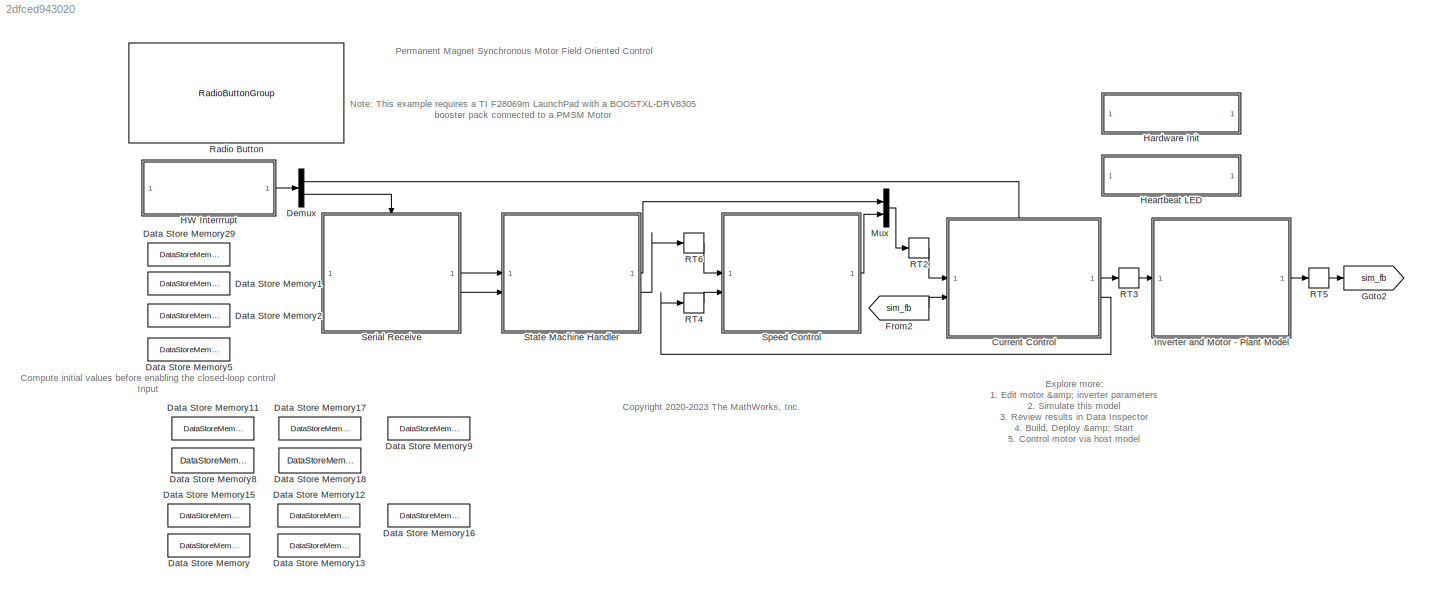
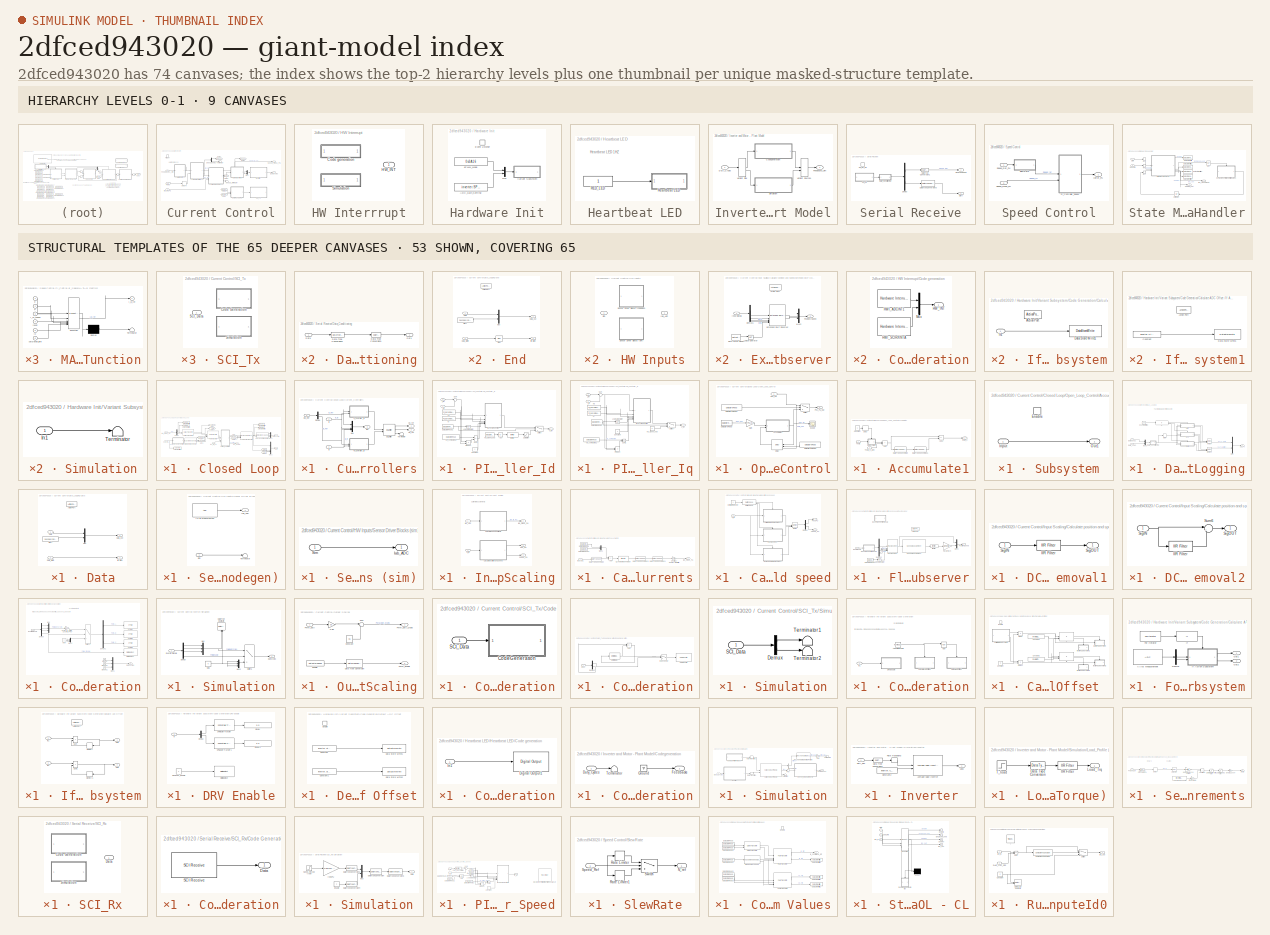
[diagram: thumbnail index - top-2 hierarchy levels (9 canvases) + 53 structural-template representatives of the remaining 65 canvases]
MODEL slx_2dfced943020
KIND model
CONFIG AbsTol = auto
CONFIG EnableMultiTasking = on
CONFIG FixedStep = auto
CONFIG InitFcn = mcb_pmsm_foc_sensorless_f28069MLaunchPad_datascript;
CONFIG MaxStep = auto
CONFIG MinStep = auto
CONFIG RelTol = 1e-3
CONFIG SampleTimeConstraint = Unconstrained
CONFIG SolverName = FixedStepDiscrete
CONFIG StartTime = 0.0
CONFIG StopTime = 8
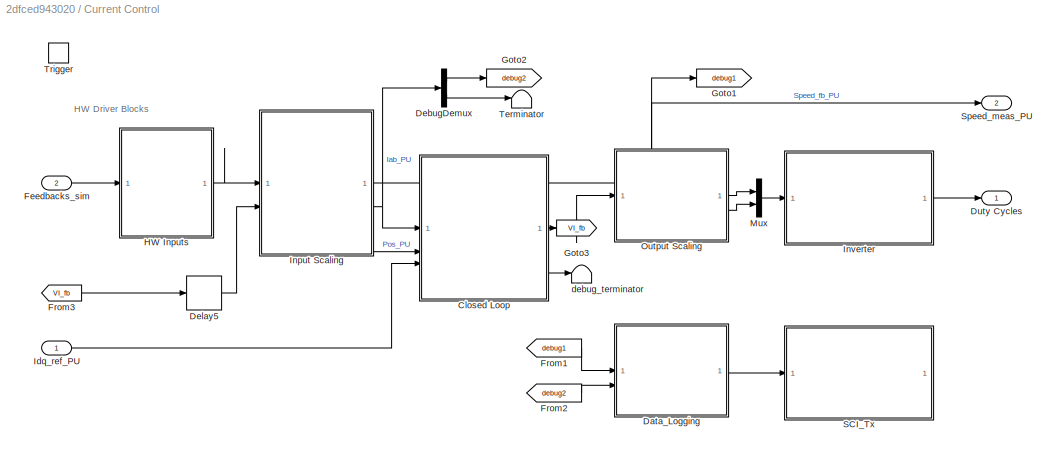
BLOCK [SubSystem] Current Control
  RTWMemSecFuncExecute = code_ramfuncs
  RTWSystemCode = Nonreusable function
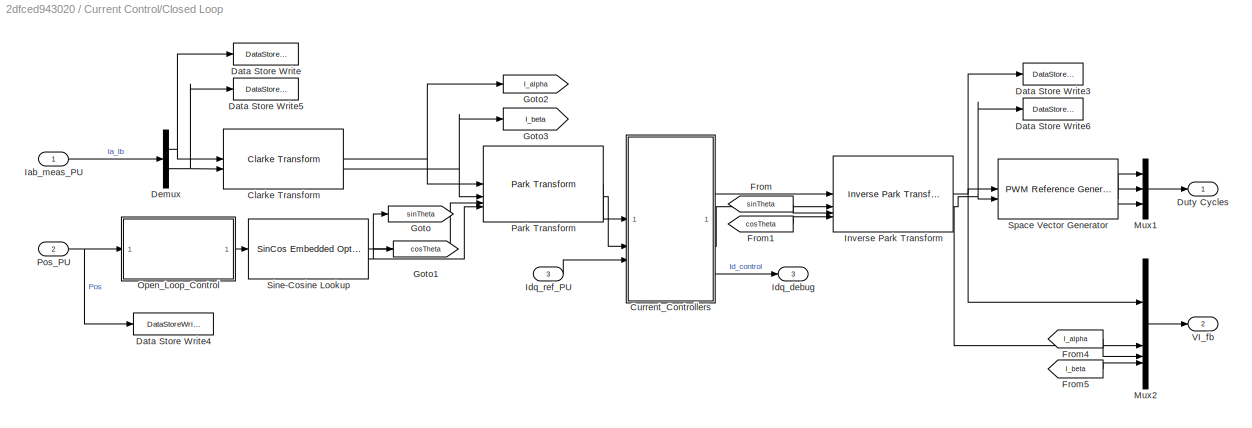
BLOCK [SubSystem] Current Control/Closed Loop
BLOCK [Reference] Current Control/Closed Loop/Clarke Transform  REF=mcbcontrolslib/Clarke Transform
  SourceBlock = mcbcontrolslib/Clarke Transform
  SourceType = Clarke Transform
BLOCK [SubSystem] Current Control/Closed Loop/Current_Controllers
BLOCK [Reference] Current Control/Closed Loop/Current_Controllers/DQ Limiter  REF=mcbcontrolslib/DQ Limiter
  SourceBlock = mcbcontrolslib/DQ Limiter
  SourceType = DQ Limiter
BLOCK [Demux] Current Control/Closed Loop/Current_Controllers/Demux
  Outputs = 2
BLOCK [Inport] Current Control/Closed Loop/Current_Controllers/Id
BLOCK [Outport] Current Control/Closed Loop/Current_Controllers/Idq
  Port = 3
  VectorParamsAs1DForOutWhenUnconnected = off
BLOCK [Inport] Current Control/Closed Loop/Current_Controllers/Idq_Ref
  Port = 3
BLOCK [Inport] Current Control/Closed Loop/Current_Controllers/Iq
  Port = 2
BLOCK [Mux] Current Control/Closed Loop/Current_Controllers/Mux
  DisplayOption = bar
BLOCK [SubSystem] Current Control/Closed Loop/Current_Controllers/PI_Controller_Id
  NameLocation = top
BLOCK [Abs] Current Control/Closed Loop/Current_Controllers/PI_Controller_Id/Abs
  RndMeth = Simplest
  SaturateOnIntegerOverflow = off
BLOCK [Constant] Current Control/Closed Loop/Current_Controllers/PI_Controller_Id/Constant
BLOCK [DataStoreRead] Current Control/Closed Loop/Current_Controllers/PI_Controller_Id/Data Store Read1
  DataStoreName = EnClosedLoop
  IndexOptions = Index vector (dialog)
  Indices = 1
  OutputSizes = 1
BLOCK [Reference] Current Control/Closed Loop/Current_Controllers/PI_Controller_Id/IIR Filter  REF=mcbcontrolslib/IIR Filter
  LibrarySourceBlock = mcblib/Signal Management/IIR Filter
  SourceBlock = mcbcontrolslib/IIR Filter
  SourceType = IIR Filter
BLOCK [Inport] Current Control/Closed Loop/Current_Controllers/PI_Controller_Id/I_fb
  Port = 2
BLOCK [Inport] Current Control/Closed Loop/Current_Controllers/PI_Controller_Id/I_ref
BLOCK [Constant] Current Control/Closed Loop/Current_Controllers/PI_Controller_Id/Ki
  OutDataTypeStr = dataType
  SampleTime = -1
  Value = PI_params.Ki_i*Ts
BLOCK [Constant] Current Control/Closed Loop/Current_Controllers/PI_Controller_Id/Kp
  NameLocation = top
  OutDataTypeStr = dataType
  SampleTime = -1
  Value = PI_params.Kp_i
BLOCK [Logic] Current Control/Closed Loop/Current_Controllers/PI_Controller_Id/Logical Operator
  AllPortsSameDT = off
  IconShape = distinctive
  Operator = NOT
  OutDataTypeStr = boolean
BLOCK [SubSystem] Current Control/Closed Loop/Current_Controllers/PI_Controller_Id/MATLAB Function
  ErrorFcn = Stateflow.Translate.translate
  PermitHierarchicalResolution = ExplicitOnly
  SFBlockType = MATLAB Function
  TreatAsAtomicUnit = on
BLOCK [Demux] Current Control/Closed Loop/Current_Controllers/PI_Controller_Id/MATLAB Function/ Demux 
  Outputs = 1
BLOCK [S-Function] Current Control/Closed Loop/Current_Controllers/PI_Controller_Id/MATLAB Function/ SFunction 
  EnableBusSupport = on
  FunctionName = sf_sfun
  PortCounts = [6 2]
  SFcnIsStateOwnerBlock = off
  SFunctionDeploymentMode = off
  Tag = Stateflow S-Function 1
BLOCK [Terminator] Current Control/Closed Loop/Current_Controllers/PI_Controller_Id/MATLAB Function/ Terminator 
BLOCK [Inport] Current Control/Closed Loop/Current_Controllers/PI_Controller_Id/MATLAB Function/I_Ts_speed
  Port = 3
BLOCK [Inport] Current Control/Closed Loop/Current_Controllers/PI_Controller_Id/MATLAB Function/Id0
  Port = 5
BLOCK [Inport] Current Control/Closed Loop/Current_Controllers/PI_Controller_Id/MATLAB Function/P
  Port = 2
BLOCK [Outport] Current Control/Closed Loop/Current_Controllers/PI_Controller_Id/MATLAB Function/V_d_ref
BLOCK [Inport] Current Control/Closed Loop/Current_Controllers/PI_Controller_Id/MATLAB Function/e
BLOCK [Inport] Current Control/Closed Loop/Current_Controllers/PI_Controller_Id/MATLAB Function/reset
  Port = 4
BLOCK [Inport] Current Control/Closed Loop/Current_Controllers/PI_Controller_Id/MATLAB Function/saturation_limit
  Port = 6
BLOCK [Product] Current Control/Closed Loop/Current_Controllers/PI_Controller_Id/Product
  OutDataTypeStr = Inherit: Same as first input
  RndMeth = Simplest
BLOCK [Saturate] Current Control/Closed Loop/Current_Controllers/PI_Controller_Id/Saturation
  LowerLimit = MIN_OL_VD_LIMIT
  RndMeth = Simplest
  UpperLimit = MAX_OL_VD_LIMIT
BLOCK [Sum] Current Control/Closed Loop/Current_Controllers/PI_Controller_Id/Sum
  AccumDataTypeStr = Inherit: Same as first input
  Inputs = |+-
  OutDataTypeStr = Inherit: Same as first input
BLOCK [Sum] Current Control/Closed Loop/Current_Controllers/PI_Controller_Id/Sum1
  IconShape = rectangular
  Inputs = +-
  OutDataTypeStr = Inherit: Same as first input
  RndMeth = Simplest
BLOCK [Switch] Current Control/Closed Loop/Current_Controllers/PI_Controller_Id/Switch
  Criteria = u2 ~= 0
  InputSameDT = off
  RndMeth = Simplest
  SaturateOnIntegerOverflow = off
BLOCK [Outport] Current Control/Closed Loop/Current_Controllers/PI_Controller_Id/V_ref
  VectorParamsAs1DForOutWhenUnconnected = off
BLOCK [DataStoreRead] Current Control/Closed Loop/Current_Controllers/PI_Controller_Id/Vd_OpenLoop
  DataStoreName = SpdCtrlRef
  IndexOptions = Index vector (dialog)
  Indices = 1
  OutputSizes = 1
BLOCK [DataStoreRead] Current Control/Closed Loop/Current_Controllers/PI_Controller_Id/Vd_computed1
  DataStoreName = Vd_out_initial
  IndexOptions = Index vector (dialog)
  Indices = 1
  OutputSizes = 1
BLOCK [SubSystem] Current Control/Closed Loop/Current_Controllers/PI_Controller_Iq
  NameLocation = top
BLOCK [Constant] Current Control/Closed Loop/Current_Controllers/PI_Controller_Iq/Constant
BLOCK [DataStoreRead] Current Control/Closed Loop/Current_Controllers/PI_Controller_Iq/Data Store Read1
  DataStoreName = EnClosedLoop
  IndexOptions = Index vector (dialog)
  Indices = 1
  OutputSizes = 1
BLOCK [Inport] Current Control/Closed Loop/Current_Controllers/PI_Controller_Iq/I_fb
  Port = 2
BLOCK [Inport] Current Control/Closed Loop/Current_Controllers/PI_Controller_Iq/I_ref
BLOCK [Constant] Current Control/Closed Loop/Current_Controllers/PI_Controller_Iq/Ki
  OutDataTypeStr = dataType
  SampleTime = -1
  Value = PI_params.Ki_i*Ts
BLOCK [Constant] Current Control/Closed Loop/Current_Controllers/PI_Controller_Iq/Kp
  NameLocation = top
  OutDataTypeStr = dataType
  SampleTime = -1
  Value = PI_params.Kp_i
BLOCK [Logic] Current Control/Closed Loop/Current_Controllers/PI_Controller_Iq/Logical Operator
  AllPortsSameDT = off
  IconShape = distinctive
  Operator = NOT
  OutDataTypeStr = boolean
BLOCK [SubSystem] Current Control/Closed Loop/Current_Controllers/PI_Controller_Iq/MATLAB Function
  ErrorFcn = Stateflow.Translate.translate
  PermitHierarchicalResolution = ExplicitOnly
  SFBlockType = MATLAB Function
  TreatAsAtomicUnit = on
BLOCK [Demux] Current Control/Closed Loop/Current_Controllers/PI_Controller_Iq/MATLAB Function/ Demux 
  Outputs = 1
BLOCK [S-Function] Current Control/Closed Loop/Current_Controllers/PI_Controller_Iq/MATLAB Function/ SFunction 
  EnableBusSupport = on
  FunctionName = sf_sfun
  PortCounts = [6 2]
  SFcnIsStateOwnerBlock = off
  SFunctionDeploymentMode = off
  Tag = Stateflow S-Function 4
BLOCK [Terminator] Current Control/Closed Loop/Current_Controllers/PI_Controller_Iq/MATLAB Function/ Terminator 
BLOCK [Inport] Current Control/Closed Loop/Current_Controllers/PI_Controller_Iq/MATLAB Function/I_Ts_speed
  Port = 3
BLOCK [Inport] Current Control/Closed Loop/Current_Controllers/PI_Controller_Iq/MATLAB Function/Iq0
  Port = 5
BLOCK [Inport] Current Control/Closed Loop/Current_Controllers/PI_Controller_Iq/MATLAB Function/P
  Port = 2
BLOCK [Outport] Current Control/Closed Loop/Current_Controllers/PI_Controller_Iq/MATLAB Function/V_q_ref
BLOCK [Inport] Current Control/Closed Loop/Current_Controllers/PI_Controller_Iq/MATLAB Function/e
BLOCK [Inport] Current Control/Closed Loop/Current_Controllers/PI_Controller_Iq/MATLAB Function/reset
  Port = 4
BLOCK [Inport] Current Control/Closed Loop/Current_Controllers/PI_Controller_Iq/MATLAB Function/saturation_limit
  Port = 6
BLOCK [Product] Current Control/Closed Loop/Current_Controllers/PI_Controller_Iq/Product
  OutDataTypeStr = Inherit: Same as first input
  RndMeth = Simplest
BLOCK [Sum] Current Control/Closed Loop/Current_Controllers/PI_Controller_Iq/Sum
  AccumDataTypeStr = Inherit: Same as first input
  Inputs = |+-
  OutDataTypeStr = Inherit: Same as first input
BLOCK [Sum] Current Control/Closed Loop/Current_Controllers/PI_Controller_Iq/Sum1
  IconShape = rectangular
  Inputs = +-
  OutDataTypeStr = Inherit: Same as first input
  RndMeth = Simplest
BLOCK [Switch] Current Control/Closed Loop/Current_Controllers/PI_Controller_Iq/Switch
  Criteria = u2 ~= 0
  InputSameDT = off
  RndMeth = Simplest
  SaturateOnIntegerOverflow = off
BLOCK [Outport] Current Control/Closed Loop/Current_Controllers/PI_Controller_Iq/V_ref
  VectorParamsAs1DForOutWhenUnconnected = off
BLOCK [Constant] Current Control/Closed Loop/Current_Controllers/PI_Controller_Iq/Vq_OpenLoop
  OutDataTypeStr = dataType
  SampleTime = -1
  Value = 0
BLOCK [DataStoreRead] Current Control/Closed Loop/Current_Controllers/PI_Controller_Iq/Vq_computed1
  DataStoreName = Vq_out_initial
  IndexOptions = Index vector (dialog)
  Indices = 1
  OutputSizes = 1
BLOCK [Terminator] Current Control/Closed Loop/Current_Controllers/Terminator
BLOCK [Outport] Current Control/Closed Loop/Current_Controllers/Vd_ref
  NameLocation = top
  VectorParamsAs1DForOutWhenUnconnected = off
BLOCK [Outport] Current Control/Closed Loop/Current_Controllers/Vq_ref
  Port = 2
  VectorParamsAs1DForOutWhenUnconnected = off
BLOCK [DataStoreWrite] Current Control/Closed Loop/Data Store Write
  DataStoreName = Ia_meas_PU
  IndexOptions = Index vector (dialog)
  Indices = 1
  OutputSizes = 1
BLOCK [DataStoreWrite] Current Control/Closed Loop/Data Store Write3
  DataStoreName = V_alpha
  IndexOptions = Index vector (dialog)
  Indices = 1
  OutputSizes = 1
BLOCK [DataStoreWrite] Current Control/Closed Loop/Data Store Write4
  DataStoreName = Pos_meas_PU
  IndexOptions = Index vector (dialog)
  Indices = 1
  OutputSizes = 1
BLOCK [DataStoreWrite] Current Control/Closed Loop/Data Store Write5
  DataStoreName = Ib_meas_PU
  IndexOptions = Index vector (dialog)
  Indices = 1
  OutputSizes = 1
BLOCK [DataStoreWrite] Current Control/Closed Loop/Data Store Write6
  DataStoreName = V_beta
  IndexOptions = Index vector (dialog)
  Indices = 1
  OutputSizes = 1
BLOCK [Demux] Current Control/Closed Loop/Demux
  Outputs = 2
BLOCK [Outport] Current Control/Closed Loop/Duty Cycles
  VectorParamsAs1DForOutWhenUnconnected = off
BLOCK [From] Current Control/Closed Loop/From
  GotoTag = sinTheta
BLOCK [From] Current Control/Closed Loop/From1
  GotoTag = cosTheta
BLOCK [From] Current Control/Closed Loop/From4
  GotoTag = I_alpha
BLOCK [From] Current Control/Closed Loop/From5
  GotoTag = I_beta
BLOCK [Goto] Current Control/Closed Loop/Goto
  GotoTag = sinTheta
BLOCK [Goto] Current Control/Closed Loop/Goto1
  GotoTag = cosTheta
BLOCK [Goto] Current Control/Closed Loop/Goto2
  GotoTag = I_alpha
BLOCK [Goto] Current Control/Closed Loop/Goto3
  GotoTag = I_beta
BLOCK [Inport] Current Control/Closed Loop/Iab_meas_PU
BLOCK [Outport] Current Control/Closed Loop/Idq_debug
  Port = 3
  VectorParamsAs1DForOutWhenUnconnected = off
BLOCK [Inport] Current Control/Closed Loop/Idq_ref_PU
  Port = 3
BLOCK [Reference] Current Control/Closed Loop/Inverse Park Transform  REF=mcbcontrolslib/Inverse Park Transform
  SourceBlock = mcbcontrolslib/Inverse Park Transform
  SourceType = Inverse Park Transform
BLOCK [Mux] Current Control/Closed Loop/Mux1
  DisplayOption = bar
  Inputs = 3
BLOCK [Mux] Current Control/Closed Loop/Mux2
  DisplayOption = bar
BLOCK [SubSystem] Current Control/Closed Loop/Open_Loop_Control
BLOCK [SubSystem] Current Control/Closed Loop/Open_Loop_Control/Accumulate1
  LibrarySourceBlock = mcbcontrolslib/Position Generator/Accumulate
BLOCK [Sum] Current Control/Closed Loop/Open_Loop_Control/Accumulate1/Add
  IconShape = rectangular
  OutDataTypeStr = Inherit: Same as first input
  RndMeth = Simplest
BLOCK [Sum] Current Control/Closed Loop/Open_Loop_Control/Accumulate1/Add1
  IconShape = rectangular
  Inputs = +-
  OutDataTypeStr = Inherit: Inherit via back propagation
  RndMeth = Simplest
BLOCK [Constant] Current Control/Closed Loop/Open_Loop_Control/Accumulate1/Constant
  OutDataTypeStr = boolean
  SampleTime = -1
BLOCK [DataTypeConversion] Current Control/Closed Loop/Open_Loop_Control/Accumulate1/Data Type Conversion
  OutDataTypeStr = int16
  RndMeth = Floor
  SaturateOnIntegerOverflow = off
BLOCK [DataTypeConversion] Current Control/Closed Loop/Open_Loop_Control/Accumulate1/Data Type Conversion1
  RndMeth = Simplest
  SaturateOnIntegerOverflow = off
BLOCK [Delay] Current Control/Closed Loop/Open_Loop_Control/Accumulate1/Delay
  DelayLength = 1
  InputPortMap = u0
BLOCK [SubSystem] Current Control/Closed Loop/Open_Loop_Control/Accumulate1/Subsystem
BLOCK [EnablePort] Current Control/Closed Loop/Open_Loop_Control/Accumulate1/Subsystem/Enable
BLOCK [Inport] Current Control/Closed Loop/Open_Loop_Control/Accumulate1/Subsystem/Input
BLOCK [Outport] Current Control/Closed Loop/Open_Loop_Control/Accumulate1/Subsystem/Out1
  InitialOutput = 0
BLOCK [Inport] Current Control/Closed Loop/Open_Loop_Control/Accumulate1/Theta
BLOCK [Inport] Current Control/Closed Loop/Open_Loop_Control/Accumulate1/Theta_e_prev
  Port = 2
BLOCK [Outport] Current Control/Closed Loop/Open_Loop_Control/Accumulate1/theta_e
  InitialOutput = 0
BLOCK [DataStoreRead] Current Control/Closed Loop/Open_Loop_Control/Data Store Read
  DataStoreName = SpdCtrlRef
  IndexOptions = Index vector (dialog)
  Indices = 1
  OutputSizes = 1
BLOCK [DataStoreRead] Current Control/Closed Loop/Open_Loop_Control/Data Store Read1
  DataStoreName = EnClosedLoop
  IndexOptions = Index vector (dialog)
  Indices = 1
  OutputSizes = 1
BLOCK [DataStoreRead] Current Control/Closed Loop/Open_Loop_Control/Data Store Read2
  DataStoreName = EnClosedLoop
  IndexOptions = Index vector (dialog)
  Indices = 1
  NameLocation = top
  OutputSizes = 1
BLOCK [Delay] Current Control/Closed Loop/Open_Loop_Control/Delay
  DelayLength = 1
  ExternalReset = Falling
  InitialConditionSource = Input port
  InputPortMap = u0,r5,p4
  NameLocation = top
BLOCK [Gain] Current Control/Closed Loop/Open_Loop_Control/Gain
  Gain = Ts*PU_System.N_base*pmsm.p/60
  OutDataTypeStr = Inherit: Same as input
  ParamDataTypeStr = Inherit: Same as input
BLOCK [Inport] Current Control/Closed Loop/Open_Loop_Control/Pos_PU
BLOCK [Outport] Current Control/Closed Loop/Open_Loop_Control/Pos_PU_Out
BLOCK [Scope] Current Control/Closed Loop/Open_Loop_Control/Scope
  Floating = off
  NumInputPorts = 1
  ScopeSpecificationString = Simulink.scopes.TimeScopeBlockCfg('CurrentConfiguration', extmgr.ConfigurationSet(extmgr.Configuration('Core','General UI',true),extmgr.Configuration('Core','Source UI',true),extmgr.Configuration('Sources','WiredSimulink',true),extmgr.Configuration('Visuals','Time Domain',true,'SerializedDisplays',{struct('MinYLimReal','-0.04556','MaxYLimReal','1.0357','YLabelReal','','MinYLimMag','0.00000','MaxYL...<+1422ch>
BLOCK [Switch] Current Control/Closed Loop/Open_Loop_Control/Switch
  Criteria = u2 ~= 0
  InputSameDT = off
  SaturateOnIntegerOverflow = off
  Threshold = 0.1
BLOCK [Reference] Current Control/Closed Loop/Park Transform  REF=mcbcontrolslib/Park Transform
  SourceBlock = mcbcontrolslib/Park Transform
  SourceType = Park Transform
BLOCK [Inport] Current Control/Closed Loop/Pos_PU
  Port = 2
BLOCK [Reference] Current Control/Closed Loop/Sine-Cosine Lookup  REF=mcbcontrolslib/SinCos Embedded Optimized
  SourceBlock = mcbcontrolslib/SinCos Embedded Optimized
  SourceType = SinCos Embedded Optimized
BLOCK [Reference] Current Control/Closed Loop/Space Vector Generator  REF=mcbcontrolslib/PWM Reference Generator
  SourceBlock = mcbcontrolslib/PWM Reference Generator
  SourceType = PWM Modulation
BLOCK [Outport] Current Control/Closed Loop/VI_fb
  Port = 2
  VectorParamsAs1DForOutWhenUnconnected = off
BLOCK [SubSystem] Current Control/Data_Logging
BLOCK [Reference] Current Control/Data_Logging/Counter Limited  REF=simulink/Sources/Counter
Limited
  SourceBlock = simulink/Sources/Counter\nLimited
  SourceType = Counter Limited
BLOCK [SubSystem] Current Control/Data_Logging/Data
  TreatAsAtomicUnit = on
BLOCK [ActionPort] Current Control/Data_Logging/Data/Action Port
  ActionPortLabel = else
BLOCK [Inport] Current Control/Data_Logging/Data/Data
BLOCK [Outport] Current Control/Data_Logging/Data/Data_out
  VectorParamsAs1DForOutWhenUnconnected = off
BLOCK [Inport] Current Control/Data_Logging/Data/Data_width
  Port = 2
BLOCK [Outport] Current Control/Data_Logging/Data/Iteration
  Port = 2
  VectorParamsAs1DForOutWhenUnconnected = off
BLOCK [Mux] Current Control/Data_Logging/Data/Mux
  DisplayOption = bar
  Inputs = 2
BLOCK [Constant] Current Control/Data_Logging/Data/Start
  OutDataTypeStr = uint16
  Value = hex2dec('0000')
BLOCK [SubSystem] Current Control/Data_Logging/Data_Conditioning
BLOCK [DataTypeConversion] Current Control/Data_Logging/Data_Conditioning/Data Type Conversion
  OutDataTypeStr = fixdt(1,16,12)
  RndMeth = Simplest
  SaturateOnIntegerOverflow = off
BLOCK [DataTypeConversion] Current Control/Data_Logging/Data_Conditioning/Data Type Conversion3
  ConvertRealWorld = Stored Integer (SI)
  OutDataTypeStr = uint16
  RndMeth = Floor
  SaturateOnIntegerOverflow = off
BLOCK [Inport] Current Control/Data_Logging/Data_Conditioning/In1
BLOCK [Outport] Current Control/Data_Logging/Data_Conditioning/Out1
  VectorParamsAs1DForOutWhenUnconnected = off
BLOCK [Inport] Current Control/Data_Logging/Data_Log1
BLOCK [Inport] Current Control/Data_Logging/Data_Log2
  Port = 2
BLOCK [SubSystem] Current Control/Data_Logging/End
  TreatAsAtomicUnit = on
BLOCK [ActionPort] Current Control/Data_Logging/End/Action Port
  ActionPortLabel = elseif(u1 == 599)
BLOCK [Bias] Current Control/Data_Logging/End/Bias
  Bias = 1
  SaturateOnIntegerOverflow = off
BLOCK [Inport] Current Control/Data_Logging/End/Data
BLOCK [Outport] Current Control/Data_Logging/End/Data_out
  VectorParamsAs1DForOutWhenUnconnected = off
BLOCK [Inport] Current Control/Data_Logging/End/Data_width
  Port = 2
BLOCK [Outport] Current Control/Data_Logging/End/Iteration
  Port = 2
  VectorParamsAs1DForOutWhenUnconnected = off
BLOCK [Mux] Current Control/Data_Logging/End/Mux
  DisplayOption = bar
  Inputs = 2
BLOCK [Constant] Current Control/Data_Logging/End/Start
  OutDataTypeStr = uint16
  Value = hex2dec('4545')
BLOCK [If] Current Control/Data_Logging/If
  ElseIfExpressions = u1 == 599
  IfExpression = u1 == 0
BLOCK [Merge] Current Control/Data_Logging/Merge
  Inputs = 3
BLOCK [Merge] Current Control/Data_Logging/Merge1
  Inputs = 3
BLOCK [Mux] Current Control/Data_Logging/Mux
  DisplayOption = bar
  Inputs = 2
BLOCK [Mux] Current Control/Data_Logging/Mux3
  DisplayOption = bar
  Inputs = 2
BLOCK [Outport] Current Control/Data_Logging/SCI_Tx
BLOCK [SubSystem] Current Control/Data_Logging/Start
  TreatAsAtomicUnit = on
BLOCK [ActionPort] Current Control/Data_Logging/Start/Action Port
  ActionPortLabel = if(u1 == 0)
BLOCK [Bias] Current Control/Data_Logging/Start/Bias
  Bias = 1
  SaturateOnIntegerOverflow = off
BLOCK [Inport] Current Control/Data_Logging/Start/Data
BLOCK [Outport] Current Control/Data_Logging/Start/Data_out
  VectorParamsAs1DForOutWhenUnconnected = off
BLOCK [Inport] Current Control/Data_Logging/Start/Data_width
  Port = 2
BLOCK [Constant] Current Control/Data_Logging/Start/End
  OutDataTypeStr = uint16
  Value = hex2dec('5353')
BLOCK [Outport] Current Control/Data_Logging/Start/Iteration
  Port = 2
  VectorParamsAs1DForOutWhenUnconnected = off
BLOCK [Mux] Current Control/Data_Logging/Start/Mux
  DisplayOption = bar
  Inputs = 2
BLOCK [Width] Current Control/Data_Logging/Width
  DataType = uint16
  OutDataTypeMode = All ports same datatype
BLOCK [Demux] Current Control/DebugDemux
  Outputs = 2
BLOCK [Delay] Current Control/Delay5
  DelayLength = 1
  InputPortMap = u0
BLOCK [Outport] Current Control/Duty Cycles
  InitialOutput = 0
  VectorParamsAs1DForOutWhenUnconnected = off
BLOCK [Inport] Current Control/Feedbacks_sim
  Port = 2
BLOCK [From] Current Control/From1
  GotoTag = debug1
BLOCK [From] Current Control/From2
  GotoTag = debug2
BLOCK [From] Current Control/From3
  GotoTag = VI_fb
BLOCK [Goto] Current Control/Goto1
  GotoTag = debug1
BLOCK [Goto] Current Control/Goto2
  GotoTag = debug2
BLOCK [Goto] Current Control/Goto3
  GotoTag = VI_fb
BLOCK [SubSystem] Current Control/HW Inputs
  Variant = on
  VariantControlMode = sim codegen switching
BLOCK [Outport] Current Control/HW Inputs/Iab_ADC
BLOCK [SubSystem] Current Control/HW Inputs/Sensor Driver Blocks (codegen)
  VariantControl = (codegen)
BLOCK [Reference] Current Control/HW Inputs/Sensor Driver Blocks (codegen)/IA//IB Measurement  REF=c2802xlib/ADC
  SourceBlock = c2802xlib/ADC
  SourceType = ADC Type 3-5
  UserDataPersistent = on
BLOCK [Outport] Current Control/HW Inputs/Sensor Driver Blocks (codegen)/Iab_ADC
BLOCK [Inport] Current Control/HW Inputs/Sensor Driver Blocks (codegen)/Sim
BLOCK [Terminator] Current Control/HW Inputs/Sensor Driver Blocks (codegen)/Terminator
BLOCK [SubSystem] Current Control/HW Inputs/Sensor Driver Blocks (sim)
  VariantControl = (sim)
BLOCK [Outport] Current Control/HW Inputs/Sensor Driver Blocks (sim)/Iab_ADC
BLOCK [Inport] Current Control/HW Inputs/Sensor Driver Blocks (sim)/Sim
BLOCK [Inport] Current Control/HW Inputs/Sim
BLOCK [Inport] Current Control/Idq_ref_PU
BLOCK [SubSystem] Current Control/Input Scaling
BLOCK [SubSystem] Current Control/Input Scaling/Calculate Phase Currents
BLOCK [Sum] Current Control/Input Scaling/Calculate Phase Currents/Add
  IconShape = rectangular
  Inputs = -+
BLOCK [DataStoreRead] Current Control/Input Scaling/Calculate Phase Currents/Data Store Read
  DataStoreName = IaOffset
  IndexOptions = Index vector (dialog)
  Indices = 1
  OutputSizes = 1
BLOCK [DataStoreRead] Current Control/Input Scaling/Calculate Phase Currents/Data Store Read1
  DataStoreName = IbOffset
  IndexOptions = Index vector (dialog)
  Indices = 1
  OutputSizes = 1
BLOCK [DataTypeConversion] Current Control/Input Scaling/Calculate Phase Currents/Data Type Conversion
  ConvertRealWorld = Stored Integer (SI)
  OutDataTypeStr = int32
  RndMeth = Floor
  SaturateOnIntegerOverflow = off
BLOCK [DataTypeConversion] Current Control/Input Scaling/Calculate Phase Currents/Data Type Conversion1
  OutDataTypeStr = dataType
  RndMeth = Floor
  SaturateOnIntegerOverflow = off
BLOCK [DataTypeConversion] Current Control/Input Scaling/Calculate Phase Currents/Data Type Conversion3
  ConvertRealWorld = Stored Integer (SI)
  OutDataTypeStr = fixdt(1,32,17)
  RndMeth = Simplest
  SaturateOnIntegerOverflow = off
BLOCK [Inport] Current Control/Input Scaling/Calculate Phase Currents/Iab_ADC
BLOCK [Outport] Current Control/Input Scaling/Calculate Phase Currents/Iab_meas_PU
  VectorParamsAs1DForOutWhenUnconnected = off
BLOCK [Gain] Current Control/Input Scaling/Calculate Phase Currents/Inverting // Non-inverting Current measurement amplifier
  Gain = inverter.invertingAmp
  OutDataTypeStr = Inherit: Same as input
  RndMeth = Simplest
BLOCK [Mux] Current Control/Input Scaling/Calculate Phase Currents/Mux1
  DisplayOption = bar
  Inputs = 2
BLOCK [ArithShift] Current Control/Input Scaling/Calculate Phase Currents/Q17 per unit conversion
  BitShiftNumber = -6
  InputPortMap = u0
BLOCK [SubSystem] Current Control/Input Scaling/Calculate position and speed
BLOCK [Demux] Current Control/Input Scaling/Calculate position and speed/Demux
  Outputs = 2
BLOCK [Constant] Current Control/Input Scaling/Calculate position and speed/EstimatorSelector
  OutDataTypeStr = uint32
BLOCK [SubSystem] Current Control/Input Scaling/Calculate position and speed/Extended EMF Observer
BLOCK [ActionPort] Current Control/Input Scaling/Calculate position and speed/Extended EMF Observer/Action Port
  ActionPortLabel = case [ 2 ]:
BLOCK [DataStoreRead] Current Control/Input Scaling/Calculate position and speed/Extended EMF Observer/Data Store Read1
  DataStoreName = Enable
  IndexOptions = Index vector (dialog)
  Indices = 1
  OutputSizes = 1
BLOCK [Demux] Current Control/Input Scaling/Calculate position and speed/Extended EMF Observer/Demux1
BLOCK [Reference] Current Control/Input Scaling/Calculate position and speed/Extended EMF Observer/Extended EMF Observer  REF=mcbsensorlessestimatorlib/Extended EMF Observer
  LibrarySourceBlock = mcblib/Sensorless Estimators/Extended EMF Observer
  SourceBlock = mcbsensorlessestimatorlib/Extended EMF Observer
  SourceType = Extended EMF Observer
BLOCK [Inport] Current Control/Input Scaling/Calculate position and speed/Extended EMF Observer/InputSignals
BLOCK [Logic] Current Control/Input Scaling/Calculate position and speed/Extended EMF Observer/Logical Operator
  AllPortsSameDT = off
  IconShape = distinctive
  Operator = NOT
  OutDataTypeStr = boolean
BLOCK [Mux] Current Control/Input Scaling/Calculate position and speed/Extended EMF Observer/Mux2
  DisplayOption = bar
  Inputs = 2
BLOCK [Outport] Current Control/Input Scaling/Calculate position and speed/Extended EMF Observer/Position//Speed
BLOCK [SubSystem] Current Control/Input Scaling/Calculate position and speed/Flux Observer
BLOCK [ActionPort] Current Control/Input Scaling/Calculate position and speed/Flux Observer/Action Port
  ActionPortLabel = case [ 1 ]:
BLOCK [SubSystem] Current Control/Input Scaling/Calculate position and speed/Flux Observer/DC component removal1
BLOCK [Reference] Current Control/Input Scaling/Calculate position and speed/Flux Observer/DC component removal1/IIR Filter  REF=mcbcontrolslib/IIR Filter
  SourceBlock = mcbcontrolslib/IIR Filter
  SourceType = IIR Filter
BLOCK [Inport] Current Control/Input Scaling/Calculate position and speed/Flux Observer/DC component removal1/SigIN
BLOCK [Outport] Current Control/Input Scaling/Calculate position and speed/Flux Observer/DC component removal1/SigOUT
BLOCK [SubSystem] Current Control/Input Scaling/Calculate position and speed/Flux Observer/DC component removal2
  Commented = on
BLOCK [Reference] Current Control/Input Scaling/Calculate position and speed/Flux Observer/DC component removal2/IIR Filter  REF=mcbcontrolslib/IIR Filter
  SourceBlock = mcbcontrolslib/IIR Filter
  SourceType = IIR Filter
BLOCK [Inport] Current Control/Input Scaling/Calculate position and speed/Flux Observer/DC component removal2/SigIN
BLOCK [Outport] Current Control/Input Scaling/Calculate position and speed/Flux Observer/DC component removal2/SigOUT
BLOCK [Sum] Current Control/Input Scaling/Calculate position and speed/Flux Observer/DC component removal2/Sum6
  AccumDataTypeStr = Inherit: Same as first input
  Inputs = |+-
  OutDataTypeStr = Inherit: Same as first input
  RndMeth = Simplest
BLOCK [DataStoreRead] Current Control/Input Scaling/Calculate position and speed/Flux Observer/Data Store Read1
  DataStoreName = Enable
  IndexOptions = Index vector (dialog)
  Indices = 1
  OutputSizes = 1
BLOCK [Demux] Current Control/Input Scaling/Calculate position and speed/Flux Observer/Demux2
BLOCK [Reference] Current Control/Input Scaling/Calculate position and speed/Flux Observer/Flux Observer  REF=mcbpositiondecoderlib/Flux Observer
  SourceBlock = mcbpositiondecoderlib/Flux Observer
  SourceType = Flux Observer
BLOCK [Reference] Current Control/Input Scaling/Calculate position and speed/Flux Observer/IIR Filter  REF=mcbcontrolslib/IIR Filter
  SourceBlock = mcbcontrolslib/IIR Filter
  SourceType = IIR Filter
BLOCK [Inport] Current Control/Input Scaling/Calculate position and speed/Flux Observer/InputSignals
BLOCK [Logic] Current Control/Input Scaling/Calculate position and speed/Flux Observer/Logical Operator
  AllPortsSameDT = off
  IconShape = distinctive
  Operator = NOT
  OutDataTypeStr = boolean
BLOCK [Mux] Current Control/Input Scaling/Calculate position and speed/Flux Observer/Mux2
  DisplayOption = bar
  Inputs = 2
BLOCK [Outport] Current Control/Input Scaling/Calculate position and speed/Flux Observer/Position//Speed
BLOCK [Reference] Current Control/Input Scaling/Calculate position and speed/Flux Observer/Speed Measurement  REF=mcbpositiondecoderlib/Speed Measurement
  SourceBlock = mcbpositiondecoderlib/Speed Measurement
  SourceType = Speed Measurement
BLOCK [Gain] Current Control/Input Scaling/Calculate position and speed/Flux Observer/elect2mech
  Gain = 1/pmsm.p
  OutDataTypeStr = Inherit: Same as input
  RndMeth = Simplest
BLOCK [Merge] Current Control/Input Scaling/Calculate position and speed/Merge
  Inputs = 3
BLOCK [Outport] Current Control/Input Scaling/Calculate position and speed/Pos_PU
BLOCK [SubSystem] Current Control/Input Scaling/Calculate position and speed/Sliding Mode Observer
BLOCK [ActionPort] Current Control/Input Scaling/Calculate position and speed/Sliding Mode Observer/Action Port
  ActionPortLabel = case [ 0 ]:
BLOCK [DataStoreRead] Current Control/Input Scaling/Calculate position and speed/Sliding Mode Observer/Data Store Read1
  DataStoreName = Enable
  IndexOptions = Index vector (dialog)
  Indices = 1
  OutputSizes = 1
BLOCK [Demux] Current Control/Input Scaling/Calculate position and speed/Sliding Mode Observer/Demux1
BLOCK [Inport] Current Control/Input Scaling/Calculate position and speed/Sliding Mode Observer/InputSignals
BLOCK [Logic] Current Control/Input Scaling/Calculate position and speed/Sliding Mode Observer/Logical Operator
  AllPortsSameDT = off
  IconShape = distinctive
  Operator = NOT
  OutDataTypeStr = boolean
BLOCK [Mux] Current Control/Input Scaling/Calculate position and speed/Sliding Mode Observer/Mux
  DisplayOption = bar
  Inputs = 2
BLOCK [Outport] Current Control/Input Scaling/Calculate position and speed/Sliding Mode Observer/Position//Speed
BLOCK [Reference] Current Control/Input Scaling/Calculate position and speed/Sliding Mode Observer/Sliding Mode Observer1  REF=mcbsensorlessestimatorlib/Sliding Mode Observer
  SourceBlock = mcbsensorlessestimatorlib/Sliding Mode Observer
  SourceType = Sliding Mode Observer
BLOCK [SwitchCase] Current Control/Input Scaling/Calculate position and speed/Switch Case
  CaseConditions = {0,1,2}
  ShowDefaultCase = off
BLOCK [Inport] Current Control/Input Scaling/Calculate position and speed/VI_fb
BLOCK [Outport] Current Control/Input Scaling/Calculate position and speed/speed_PU
  Port = 2
BLOCK [Inport] Current Control/Input Scaling/Iab_ADC
BLOCK [Outport] Current Control/Input Scaling/Iab_meas_PU
  Port = 2
BLOCK [Outport] Current Control/Input Scaling/Pos_PU
  Port = 3
BLOCK [Inport] Current Control/Input Scaling/VI_fb
  Port = 2
BLOCK [Outport] Current Control/Input Scaling/speed_PU
BLOCK [SubSystem] Current Control/Inverter
  Variant = on
  VariantControlMode = sim codegen switching
BLOCK [SubSystem] Current Control/Inverter/Code Generation
  VariantControl = (codegen)
BLOCK [Demux] Current Control/Inverter/Code Generation/Demux
BLOCK [Demux] Current Control/Inverter/Code Generation/Demux1
  Outputs = 3
BLOCK [Reference] Current Control/Inverter/Code Generation/Digital Output  REF=c2806xlib/Digital Output
  SourceBlock = c2806xlib/Digital Output
  SourceType = C2806x GPIO Digital Output
  UserDataPersistent = on
BLOCK [Outport] Current Control/Inverter/Code Generation/DutyCycles
  VectorParamsAs1DForOutWhenUnconnected = off
BLOCK [Ground] Current Control/Inverter/Code Generation/Ground
BLOCK [Ground] Current Control/Inverter/Code Generation/Ground1
BLOCK [Ground] Current Control/Inverter/Code Generation/Ground2
BLOCK [Inport] Current Control/Inverter/Code Generation/Inverter Signals
BLOCK [Mux] Current Control/Inverter/Code Generation/Mux
  DisplayOption = bar
  Inputs = 3
BLOCK [Mux] Current Control/Inverter/Code Generation/Mux1
  DisplayOption = bar
  Inputs = 3
BLOCK [Mux] Current Control/Inverter/Code Generation/Mux2
  DisplayOption = bar
  Inputs = 3
BLOCK [Gain] Current Control/Inverter/Code Generation/Scale_to_PWM_Counter_PRD
  Gain = target.PWM_Counter_Period
  OutDataTypeStr = uint16
  RndMeth = Simplest
BLOCK [Switch] Current Control/Inverter/Code Generation/Switch1
  InputSameDT = off
  SaturateOnIntegerOverflow = off
  Threshold = 0.5
BLOCK [Reference] Current Control/Inverter/Code Generation/ePWM1  REF=c2802xlib/ePWM
  SourceBlock = c2802xlib/ePWM
  SourceType = ePWM Type 1-4
BLOCK [Reference] Current Control/Inverter/Code Generation/ePWM2  REF=c2802xlib/ePWM
  SourceBlock = c2802xlib/ePWM
  SourceType = ePWM Type 1-4
BLOCK [Reference] Current Control/Inverter/Code Generation/ePWM3  REF=c2802xlib/ePWM
  SourceBlock = c2802xlib/ePWM
  SourceType = ePWM Type 1-4
BLOCK [Constant] Current Control/Inverter/Code Generation/stop
  OutDataTypeStr = uint16
  Value = 0
BLOCK [Outport] Current Control/Inverter/DutyCycles
  VectorParamsAs1DForOutWhenUnconnected = off
BLOCK [Inport] Current Control/Inverter/Inverter Signals
BLOCK [SubSystem] Current Control/Inverter/Simulation
  VariantControl = (sim)
BLOCK [DataTypeDuplicate] Current Control/Inverter/Simulation/Data Type Duplicate
BLOCK [Demux] Current Control/Inverter/Simulation/Demux
BLOCK [Outport] Current Control/Inverter/Simulation/DutyCycles
  VectorParamsAs1DForOutWhenUnconnected = off
BLOCK [Inport] Current Control/Inverter/Simulation/Inverter Signals
BLOCK [Mux] Current Control/Inverter/Simulation/Mux
  DisplayOption = bar
  Inputs = 3
BLOCK [Mux] Current Control/Inverter/Simulation/Mux2
  DisplayOption = bar
  Inputs = 3
BLOCK [Switch] Current Control/Inverter/Simulation/Switch1
  InputSameDT = off
  RndMeth = Simplest
  SaturateOnIntegerOverflow = off
  Threshold = 0.5
BLOCK [Constant] Current Control/Inverter/Simulation/stop
  OutDataTypeStr = Inherit: Inherit via back propagation
  Value = 0
BLOCK [Mux] Current Control/Mux
  DisplayOption = bar
  Inputs = 2
BLOCK [SubSystem] Current Control/Output Scaling
BLOCK [Constant] Current Control/Output Scaling/Constant
  OutDataTypeStr = dataType
  Value = 0.5
BLOCK [DataTypeConversion] Current Control/Output Scaling/Data Type Conversion
  OutDataTypeStr = dataType
  RndMeth = Floor
  SaturateOnIntegerOverflow = off
BLOCK [DataStoreRead] Current Control/Output Scaling/Enable
  DataStoreName = Enable
  IndexOptions = Index vector (dialog)
  Indices = 1
  OutputSizes = 1
BLOCK [Gain] Current Control/Output Scaling/Gain
  Gain = 0.5
  OutDataTypeStr = Inherit: Same as input
BLOCK [Inport] Current Control/Output Scaling/PWM_Duty
BLOCK [Outport] Current Control/Output Scaling/PWM_Duty_Cycles
BLOCK [Outport] Current Control/Output Scaling/PWM_Enable
  Port = 2
BLOCK [Sum] Current Control/Output Scaling/Sum
  AccumDataTypeStr = Inherit: Same as first input
  Inputs = |++
BLOCK [SubSystem] Current Control/SCI_Tx
  Variant = on
  VariantControlMode = sim codegen switching
BLOCK [SubSystem] Current Control/SCI_Tx/Code Generation
  VariantControl = (codegen)
BLOCK [SubSystem] Current Control/SCI_Tx/Code Generation/CodeGeneration
  TreatAsAtomicUnit = on
BLOCK [Sum] Current Control/SCI_Tx/Code Generation/CodeGeneration/Add
  IconShape = rectangular
  Inputs = +-
  OutDataTypeStr = Inherit: Same as first input
BLOCK [Demux] Current Control/SCI_Tx/Code Generation/CodeGeneration/Demux2
  Outputs = 2
BLOCK [MultiPortSwitch] Current Control/SCI_Tx/Code Generation/CodeGeneration/Index Vector
  InputSameDT = off
  Inputs = 1
  SaturateOnIntegerOverflow = off
BLOCK [Inport] Current Control/SCI_Tx/Code Generation/CodeGeneration/Input
BLOCK [Reference] Current Control/SCI_Tx/Code Generation/CodeGeneration/SCI Transmit  REF=c280xlib/SCI Transmit
  SourceBlock = c280xlib/SCI Transmit
  SourceType = C28x SCI Transmit
BLOCK [WhileIterator] Current Control/SCI_Tx/Code Generation/CodeGeneration/While Iterator
  MaxIters = -1
  OutputDataType = int16
  ShowIterationPort = on
  WhileBlockType = do-while
BLOCK [Inport] Current Control/SCI_Tx/Code Generation/SCI_Data
BLOCK [Inport] Current Control/SCI_Tx/SCI_Data
BLOCK [SubSystem] Current Control/SCI_Tx/Simulation
  VariantControl = (sim)
BLOCK [Demux] Current Control/SCI_Tx/Simulation/Demux
  Outputs = 2
BLOCK [Inport] Current Control/SCI_Tx/Simulation/SCI_Data
BLOCK [Terminator] Current Control/SCI_Tx/Simulation/Terminator1
BLOCK [Terminator] Current Control/SCI_Tx/Simulation/Terminator2
BLOCK [Outport] Current Control/Speed_meas_PU
  InitialOutput = 0
  Port = 2
  VectorParamsAs1DForOutWhenUnconnected = off
BLOCK [Terminator] Current Control/Terminator
BLOCK [TriggerPort] Current Control/Trigger
  PortDimensions = 1
  StatesWhenEnabling = held
  TriggerType = function-call
  VariantControl = Variant
BLOCK [Terminator] Current Control/debug_terminator
BLOCK [DataStoreMemory] Data Store Memory
  DataStoreName = Iq_ref_initial
  OutDataTypeStr = dataType
  ShowAdditionalParam = off
  WriteAfterWriteMsg = warning
BLOCK [DataStoreMemory] Data Store Memory1
  DataStoreName = IaOffset
  InitialValue = inverter.CtSensAOffset
  ShowAdditionalParam = off
BLOCK [DataStoreMemory] Data Store Memory11
  DataStoreName = Ia_meas_PU
  OutDataTypeStr = dataType
  ShowAdditionalParam = off
  WriteAfterWriteMsg = warning
BLOCK [DataStoreMemory] Data Store Memory12
  DataStoreName = Vd_out_initial
  OutDataTypeStr = dataType
  ShowAdditionalParam = off
  WriteAfterWriteMsg = warning
BLOCK [DataStoreMemory] Data Store Memory13
  DataStoreName = Vq_out_initial
  OutDataTypeStr = dataType
  ShowAdditionalParam = off
  WriteAfterWriteMsg = warning
BLOCK [DataStoreMemory] Data Store Memory15
  DataStoreName = Id0_out
  InitialValue = 0.1
  OutDataTypeStr = dataType
  ShowAdditionalParam = off
BLOCK [DataStoreMemory] Data Store Memory16
  DataStoreName = SpdCtrlRef
  InitialValue = 0.1
  OutDataTypeStr = dataType
  ShowAdditionalParam = off
BLOCK [DataStoreMemory] Data Store Memory17
  DataStoreName = V_alpha
  OutDataTypeStr = dataType
  ShowAdditionalParam = off
  WriteAfterWriteMsg = warning
BLOCK [DataStoreMemory] Data Store Memory18
  DataStoreName = V_beta
  OutDataTypeStr = dataType
  ShowAdditionalParam = off
  WriteAfterWriteMsg = warning
BLOCK [DataStoreMemory] Data Store Memory2
  DataStoreName = IbOffset
  InitialValue = inverter.CtSensBOffset
  ShowAdditionalParam = off
BLOCK [DataStoreMemory] Data Store Memory29
  DataStoreName = Enable
  OutDataTypeStr = boolean
  ShowAdditionalParam = off
BLOCK [DataStoreMemory] Data Store Memory5
  DataStoreName = EnClosedLoop
  OutDataTypeStr = boolean
  ReadBeforeWriteMsg = warning
  ShowAdditionalParam = off
  WriteAfterReadMsg = warning
  WriteAfterWriteMsg = warning
BLOCK [DataStoreMemory] Data Store Memory8
  DataStoreName = Ib_meas_PU
  OutDataTypeStr = dataType
  ShowAdditionalParam = off
  WriteAfterWriteMsg = warning
BLOCK [DataStoreMemory] Data Store Memory9
  DataStoreName = Pos_meas_PU
  OutDataTypeStr = dataType
  ShowAdditionalParam = off
BLOCK [Demux] Demux
  Outputs = 2
BLOCK [From] From2
  GotoTag = sim_fb
BLOCK [Goto] Goto2
  GotoTag = sim_fb
BLOCK [SubSystem] HW Interrrupt
  Variant = on
  VariantControlMode = sim codegen switching
BLOCK [SubSystem] HW Interrrupt/Code generation
  VariantControl = (codegen)
BLOCK [Reference] HW Interrrupt/Code generation/HWI_ADCINT1  REF=svdschedulerlib/Hardware Interrupt v2
  LibrarySourceBlock = c2000lib/Scheduling/Hardware Interrupt
  SourceBlock = svdschedulerlib/Hardware Interrupt v2
  SourceType = HardwareInterrupt
  UserDataPersistent = on
BLOCK [Reference] HW Interrrupt/Code generation/HWI_SCIRXINTA  REF=svdschedulerlib/Hardware Interrupt v2
  LibrarySourceBlock = c2000lib/Scheduling/Hardware Interrupt
  SourceBlock = svdschedulerlib/Hardware Interrupt v2
  SourceType = HardwareInterrupt
  UserDataPersistent = on
BLOCK [Outport] HW Interrrupt/Code generation/HW_INT
BLOCK [Mux] HW Interrrupt/Code generation/Mux
  DisplayOption = bar
  Inputs = 2
BLOCK [Outport] HW Interrrupt/HW_INT
  OutputFunctionCall = on
BLOCK [SubSystem] HW Interrrupt/Simulation
  VariantControl = (sim)
BLOCK [Reference] HW Interrrupt/Simulation/ADCINT1  REF=simulink/Ports &
Subsystems/Function-Call
Generator
  SourceBlock = simulink/Ports &\nSubsystems/Function-Call\nGenerator
  SourceType = Function-Call Generator
BLOCK [Outport] HW Interrrupt/Simulation/HW_INT
BLOCK [Mux] HW Interrrupt/Simulation/Mux
  DisplayOption = bar
  Inputs = 2
BLOCK [Reference] HW Interrrupt/Simulation/SCI_Rx_INT  REF=simulink/Ports &
Subsystems/Function-Call
Generator
  SourceBlock = simulink/Ports &\nSubsystems/Function-Call\nGenerator
  SourceType = Function-Call Generator
BLOCK [SubSystem] Hardware Init
  TreatAsAtomicUnit = on
BLOCK [Constant] Hardware Init/6PWM_Mode
  OutDataTypeStr = uint16
  Priority = 1000
  SampleTime = -1
  Value = 0x3A16
BLOCK [Constant] Hardware Init/ADC_Gain_Setting
  OutDataTypeStr = uint16
  Priority = 1000
  SampleTime = -1
  Value = inverter.SPI_Gain_Setting
BLOCK [EventListener] Hardware Init/Event Listener
  DisableCoverage = on
  EventName = reset
BLOCK [Mux] Hardware Init/Mux
  DisplayOption = bar
  Inputs = 2
BLOCK [SubSystem] Hardware Init/Variant Subsystem
  Variant = on
  VariantControlMode = sim codegen switching
BLOCK [SubSystem] Hardware Init/Variant Subsystem/Code Generation
  VariantControl = (codegen)
BLOCK [Constant] Hardware Init/Variant Subsystem/Code Generation/ADC Calib Enable
  Value = inverter.ADCOffsetCalibEnable
BLOCK [SubSystem] Hardware Init/Variant Subsystem/Code Generation/Calculate ADC Offset 
  Priority = 1001
  TreatAsAtomicUnit = on
BLOCK [Constant] Hardware Init/Variant Subsystem/Code Generation/Calculate ADC Offset /Constant
  Value = 8
BLOCK [Constant] Hardware Init/Variant Subsystem/Code Generation/Calculate ADC Offset /Constant1
  OutDataTypeStr = Inherit: Inherit via back propagation
  Value = inverter.CtSensOffsetMax
BLOCK [Constant] Hardware Init/Variant Subsystem/Code Generation/Calculate ADC Offset /Constant2
  OutDataTypeStr = Inherit: Inherit via back propagation
  Value = inverter.CtSensOffsetMin
BLOCK [Product] Hardware Init/Variant Subsystem/Code Generation/Calculate ADC Offset /Divide
  Inputs = */
  OutDataTypeStr = uint16
BLOCK [Product] Hardware Init/Variant Subsystem/Code Generation/Calculate ADC Offset /Divide1
  Inputs = */
  OutDataTypeStr = uint16
BLOCK [EnablePort] Hardware Init/Variant Subsystem/Code Generation/Calculate ADC Offset /Enable
BLOCK [SubSystem] Hardware Init/Variant Subsystem/Code Generation/Calculate ADC Offset /For Iterator Subsystem
  TreatAsAtomicUnit = on
BLOCK [Demux] Hardware Init/Variant Subsystem/Code Generation/Calculate ADC Offset /For Iterator Subsystem/Demux
  Outputs = 2
BLOCK [ForIterator] Hardware Init/Variant Subsystem/Code Generation/Calculate ADC Offset /For Iterator Subsystem/For Iterator
  IterationLimit = 16
  IterationVariableDataType = uint16
BLOCK [Reference] Hardware Init/Variant Subsystem/Code Generation/Calculate ADC Offset /For Iterator Subsystem/IA//IB Measurement  REF=c2802xlib/ADC
  SourceBlock = c2802xlib/ADC
  SourceType = ADC Type 3-5
  UserDataPersistent = on
BLOCK [If] Hardware Init/Variant Subsystem/Code Generation/Calculate ADC Offset /For Iterator Subsystem/If
  IfExpression = u1 > 8
  ShowElse = off
BLOCK [SubSystem] Hardware Init/Variant Subsystem/Code Generation/Calculate ADC Offset /For Iterator Subsystem/If Action Subsystem
  TreatAsAtomicUnit = on
BLOCK [ActionPort] Hardware Init/Variant Subsystem/Code Generation/Calculate ADC Offset /For Iterator Subsystem/If Action Subsystem/Action Port
  ActionPortLabel = if(u1 > 8)
BLOCK [Inport] Hardware Init/Variant Subsystem/Code Generation/Calculate ADC Offset /For Iterator Subsystem/If Action Subsystem/In1
BLOCK [Inport] Hardware Init/Variant Subsystem/Code Generation/Calculate ADC Offset /For Iterator Subsystem/If Action Subsystem/In2
  Port = 2
BLOCK [Memory] Hardware Init/Variant Subsystem/Code Generation/Calculate ADC Offset /For Iterator Subsystem/If Action Subsystem/Memory
  InheritSampleTime = on
  NameLocation = top
BLOCK [Memory] Hardware Init/Variant Subsystem/Code Generation/Calculate ADC Offset /For Iterator Subsystem/If Action Subsystem/Memory1
  InheritSampleTime = on
  NameLocation = top
BLOCK [Outport] Hardware Init/Variant Subsystem/Code Generation/Calculate ADC Offset /For Iterator Subsystem/If Action Subsystem/Out1
BLOCK [Outport] Hardware Init/Variant Subsystem/Code Generation/Calculate ADC Offset /For Iterator Subsystem/If Action Subsystem/Out2
  Port = 2
BLOCK [Sum] Hardware Init/Variant Subsystem/Code Generation/Calculate ADC Offset /For Iterator Subsystem/If Action Subsystem/Sum
  IconShape = rectangular
BLOCK [Sum] Hardware Init/Variant Subsystem/Code Generation/Calculate ADC Offset /For Iterator Subsystem/If Action Subsystem/Sum1
  IconShape = rectangular
BLOCK [Outport] Hardware Init/Variant Subsystem/Code Generation/Calculate ADC Offset /For Iterator Subsystem/Out1
BLOCK [Outport] Hardware Init/Variant Subsystem/Code Generation/Calculate ADC Offset /For Iterator Subsystem/Out2
  Port = 2
BLOCK [If] Hardware Init/Variant Subsystem/Code Generation/Calculate ADC Offset /If
  IfExpression = u1 > u3 & u1 < u2
  NumInputs = 3
BLOCK [SubSystem] Hardware Init/Variant Subsystem/Code Generation/Calculate ADC Offset /If Action Subsystem
  TreatAsAtomicUnit = on
BLOCK [ActionPort] Hardware Init/Variant Subsystem/Code Generation/Calculate ADC Offset /If Action Subsystem/Action Port
  ActionPortLabel = if(u1 > u3 & u1 < u2)
BLOCK [DataStoreWrite] Hardware Init/Variant Subsystem/Code Generation/Calculate ADC Offset /If Action Subsystem/Data Store Write1
  DataStoreName = IaOffset
  IndexOptions = Index vector (dialog)
  Indices = 1
  OutputSizes = 1
BLOCK [Inport] Hardware Init/Variant Subsystem/Code Generation/Calculate ADC Offset /If Action Subsystem/In1
BLOCK [SubSystem] Hardware Init/Variant Subsystem/Code Generation/Calculate ADC Offset /If Action Subsystem1
  TreatAsAtomicUnit = on
BLOCK [ActionPort] Hardware Init/Variant Subsystem/Code Generation/Calculate ADC Offset /If Action Subsystem1/Action Port
  ActionPortLabel = else
BLOCK [Constant] Hardware Init/Variant Subsystem/Code Generation/Calculate ADC Offset /If Action Subsystem1/Constant
  OutDataTypeStr = Inherit: Inherit via back propagation
  Value = inverter.CtSensAOffset
BLOCK [DataStoreWrite] Hardware Init/Variant Subsystem/Code Generation/Calculate ADC Offset /If Action Subsystem1/Data Store Write1
  DataStoreName = IaOffset
  IndexOptions = Index vector (dialog)
  Indices = 1
  OutputSizes = 1
BLOCK [SubSystem] Hardware Init/Variant Subsystem/Code Generation/Calculate ADC Offset /If Action Subsystem2
  TreatAsAtomicUnit = on
BLOCK [ActionPort] Hardware Init/Variant Subsystem/Code Generation/Calculate ADC Offset /If Action Subsystem2/Action Port
  ActionPortLabel = if(u1 > u3 & u1 < u2)
BLOCK [DataStoreWrite] Hardware Init/Variant Subsystem/Code Generation/Calculate ADC Offset /If Action Subsystem2/Data Store Write2
  DataStoreName = IbOffset
  IndexOptions = Index vector (dialog)
  Indices = 1
  OutputSizes = 1
BLOCK [Inport] Hardware Init/Variant Subsystem/Code Generation/Calculate ADC Offset /If Action Subsystem2/In1
BLOCK [SubSystem] Hardware Init/Variant Subsystem/Code Generation/Calculate ADC Offset /If Action Subsystem3
  TreatAsAtomicUnit = on
BLOCK [ActionPort] Hardware Init/Variant Subsystem/Code Generation/Calculate ADC Offset /If Action Subsystem3/Action Port
  ActionPortLabel = else
BLOCK [Constant] Hardware Init/Variant Subsystem/Code Generation/Calculate ADC Offset /If Action Subsystem3/Constant1
  OutDataTypeStr = Inherit: Inherit via back propagation
  Value = inverter.CtSensBOffset
BLOCK [DataStoreWrite] Hardware Init/Variant Subsystem/Code Generation/Calculate ADC Offset /If Action Subsystem3/Data Store Write2
  DataStoreName = IbOffset
  IndexOptions = Index vector (dialog)
  Indices = 1
  OutputSizes = 1
BLOCK [If] Hardware Init/Variant Subsystem/Code Generation/Calculate ADC Offset /If1
  IfExpression = u1 > u3 & u1 < u2
  NumInputs = 3
BLOCK [SubSystem] Hardware Init/Variant Subsystem/Code Generation/DRV Enable
  Priority = 1
BLOCK [Constant] Hardware Init/Variant Subsystem/Code Generation/DRV Enable/DRV830x_Enable
  OutDataTypeStr = Inherit: Inherit via back propagation
BLOCK [Demux] Hardware Init/Variant Subsystem/Code Generation/DRV Enable/Demux
  Outputs = 2
BLOCK [Reference] Hardware Init/Variant Subsystem/Code Generation/DRV Enable/Digital Output  REF=c2806xlib/Digital Output
  SourceBlock = c2806xlib/Digital Output
  SourceType = C2806x GPIO Digital Output
  UserDataPersistent = on
BLOCK [Display] Hardware Init/Variant Subsystem/Code Generation/DRV Enable/Display
  Decimation = 1
  Format = hex (Stored Integer)
BLOCK [Display] Hardware Init/Variant Subsystem/Code Generation/DRV Enable/Display1
  Decimation = 1
  Format = hex (Stored Integer)
BLOCK [Inport] Hardware Init/Variant Subsystem/Code Generation/DRV Enable/In
BLOCK [Reference] Hardware Init/Variant Subsystem/Code Generation/DRV Enable/SPI Master Transfer  REF=c280xlib/SPI Controller Transfer
  SourceBlock = c280xlib/SPI Controller Transfer
  SourceType = codertarget.tic2000.blocks.SPIMasterTransfer
BLOCK [Reference] Hardware Init/Variant Subsystem/Code Generation/DRV Enable/SPI Master Transfer1  REF=c280xlib/SPI Controller Transfer
  SourceBlock = c280xlib/SPI Controller Transfer
  SourceType = codertarget.tic2000.blocks.SPIMasterTransfer
BLOCK [SubSystem] Hardware Init/Variant Subsystem/Code Generation/Default ADC Offset
  Priority = 1001
  TreatAsAtomicUnit = on
BLOCK [Constant] Hardware Init/Variant Subsystem/Code Generation/Default ADC Offset/Constant
  OutDataTypeStr = Inherit: Inherit via back propagation
  Value = inverter.CtSensAOffset
BLOCK [Constant] Hardware Init/Variant Subsystem/Code Generation/Default ADC Offset/Constant1
  OutDataTypeStr = Inherit: Inherit via back propagation
  Value = inverter.CtSensBOffset
BLOCK [DataStoreWrite] Hardware Init/Variant Subsystem/Code Generation/Default ADC Offset/Data Store Write1
  DataStoreName = IaOffset
  IndexOptions = Index vector (dialog)
  Indices = 1
  OutputSizes = 1
BLOCK [DataStoreWrite] Hardware Init/Variant Subsystem/Code Generation/Default ADC Offset/Data Store Write2
  DataStoreName = IbOffset
  IndexOptions = Index vector (dialog)
  Indices = 1
  OutputSizes = 1
BLOCK [EnablePort] Hardware Init/Variant Subsystem/Code Generation/Default ADC Offset/Enable
BLOCK [Inport] Hardware Init/Variant Subsystem/Code Generation/In1
BLOCK [Logic] Hardware Init/Variant Subsystem/Code Generation/NOT
  AllPortsSameDT = off
  IconShape = distinctive
  Operator = NOT
  OutDataTypeStr = boolean
BLOCK [Inport] Hardware Init/Variant Subsystem/In1
BLOCK [SubSystem] Hardware Init/Variant Subsystem/Simulation
  VariantControl = (sim)
BLOCK [Inport] Hardware Init/Variant Subsystem/Simulation/In1
BLOCK [Terminator] Hardware Init/Variant Subsystem/Simulation/Terminator
BLOCK [SubSystem] Heartbeat LED
  TreatAsAtomicUnit = on
BLOCK [SubSystem] Heartbeat LED/Heartbeat LED
  Variant = on
  VariantControlMode = sim codegen switching
BLOCK [SubSystem] Heartbeat LED/Heartbeat LED/Code generation
  VariantControl = (codegen)
BLOCK [Reference] Heartbeat LED/Heartbeat LED/Code generation/Digital Output1  REF=c2806xlib/Digital Output
  SourceBlock = c2806xlib/Digital Output
  SourceType = C2806x GPIO Digital Output
  UserDataPersistent = on
BLOCK [Inport] Heartbeat LED/Heartbeat LED/Code generation/In1
BLOCK [Inport] Heartbeat LED/Heartbeat LED/In1
BLOCK [SubSystem] Heartbeat LED/Heartbeat LED/Simulation
  VariantControl = (sim)
BLOCK [Inport] Heartbeat LED/Heartbeat LED/Simulation/In1
BLOCK [Terminator] Heartbeat LED/Heartbeat LED/Simulation/Simulation_Terminator
BLOCK [Constant] Heartbeat LED/RED_LED
  OutDataTypeStr = uint16
  SampleTime = 0.5
BLOCK [SubSystem] Inverter and Motor - Plant Model
  RTWSystemCode = Reusable function
BLOCK [SubSystem] Inverter and Motor - Plant Model/Codegeneration
BLOCK [Inport] Inverter and Motor - Plant Model/Codegeneration/Duty_Cycles
BLOCK [Outport] Inverter and Motor - Plant Model/Codegeneration/Feedbacks
  VectorParamsAs1DForOutWhenUnconnected = off
BLOCK [Ground] Inverter and Motor - Plant Model/Codegeneration/Ground
BLOCK [Terminator] Inverter and Motor - Plant Model/Codegeneration/Terminator
BLOCK [Inport] Inverter and Motor - Plant Model/Duty_Cycles
BLOCK [Outport] Inverter and Motor - Plant Model/Feedbacks_sim
  VectorParamsAs1DForOutWhenUnconnected = off
BLOCK [SubSystem] Inverter and Motor - Plant Model/Simulation
BLOCK [BusSelector] Inverter and Motor - Plant Model/Simulation/Bus Selector
  OutputSignals = MtrPos
BLOCK [Inport] Inverter and Motor - Plant Model/Simulation/Duty_Cycles
BLOCK [Outport] Inverter and Motor - Plant Model/Simulation/Feedbacks
  VectorParamsAs1DForOutWhenUnconnected = off
BLOCK [Gain] Inverter and Motor - Plant Model/Simulation/Gain
  Gain = 1/(2*pi)
  OutDataTypeStr = Inherit: Same as input
BLOCK [SubSystem] Inverter and Motor - Plant Model/Simulation/Inverter
BLOCK [Reference] Inverter and Motor - Plant Model/Simulation/Inverter/Average-Value Inverter  REF=mcbplantlib/Average-Value Inverter
  SourceBlock = mcbplantlib/Average-Value Inverter
  SourceType = Average Value Inverter
BLOCK [Constant] Inverter and Motor - Plant Model/Simulation/Inverter/Constant2
  OutDataTypeStr = single
  SampleTime = -1
  Value = inverter.V_dc
BLOCK [DataTypeConversion] Inverter and Motor - Plant Model/Simulation/Inverter/Data Type Conversion1
  OutDataTypeStr = single
  RndMeth = Simplest
  SaturateOnIntegerOverflow = off
BLOCK [Inport] Inverter and Motor - Plant Model/Simulation/Inverter/Duty_abc
BLOCK [RateTransition] Inverter and Motor - Plant Model/Simulation/Inverter/Rate Transition3
  Deterministic = off
  OutPortSampleTime = Ts_inverter
BLOCK [Outport] Inverter and Motor - Plant Model/Simulation/Inverter/Vabc
  VectorParamsAs1DForOutWhenUnconnected = off
BLOCK [SubSystem] Inverter and Motor - Plant Model/Simulation/Load_Profile (Torque)
BLOCK [DataTypeConversion] Inverter and Motor - Plant Model/Simulation/Load_Profile (Torque)/Data Type Conversion
  OutDataTypeStr = single
  RndMeth = Floor
  SaturateOnIntegerOverflow = off
BLOCK [Reference] Inverter and Motor - Plant Model/Simulation/Load_Profile (Torque)/IIR Filter  REF=mcbcontrolslib/IIR Filter
  SourceBlock = mcbcontrolslib/IIR Filter
  SourceType = IIR Filter
BLOCK [Outport] Inverter and Motor - Plant Model/Simulation/Load_Profile (Torque)/Load_Trq
  VectorParamsAs1DForOutWhenUnconnected = off
BLOCK [Step] Inverter and Motor - Plant Model/Simulation/Load_Profile (Torque)/T_load
  After = 0.05*pmsm.T_rated
  Before = 0.05*pmsm.T_rated
  SampleTime = Ts_simulink
  Time = 4
BLOCK [Reference] Inverter and Motor - Plant Model/Simulation/Mechanical to Electrical Position  REF=mcbpositiondecoderlib/Mechanical to Electrical Position
  SourceBlock = mcbpositiondecoderlib/Mechanical to Electrical Position
  SourceType = Mechanical to Electrical Position
BLOCK [RateTransition] Inverter and Motor - Plant Model/Simulation/RT1
  Deterministic = off
  OutPortSampleTime = Ts_simulink
BLOCK [RateTransition] Inverter and Motor - Plant Model/Simulation/Rate Transition
  Deterministic = off
  OutPortSampleTime = Ts_motor
BLOCK [RateTransition] Inverter and Motor - Plant Model/Simulation/Rate Transition1
  Deterministic = off
  OutPortSampleTime = Ts_motor
BLOCK [SubSystem] Inverter and Motor - Plant Model/Simulation/Sensor_Measurements
BLOCK [Sum] Inverter and Motor - Plant Model/Simulation/Sensor_Measurements/Add Offset
  IconShape = rectangular
  RndMeth = Simplest
BLOCK [DataTypeConversion] Inverter and Motor - Plant Model/Simulation/Sensor_Measurements/Data Type Conversion4
  OutDataTypeStr = single
  RndMeth = Simplest
  SaturateOnIntegerOverflow = off
BLOCK [Delay] Inverter and Motor - Plant Model/Simulation/Sensor_Measurements/Delay
  DelayLength = PI_params.delay_Currents
  InputPortMap = u0
BLOCK [Gain] Inverter and Motor - Plant Model/Simulation/Sensor_Measurements/Get ADC Count
  Gain = target.ADC_MaxCount/target.ADC_Vref
  OutDataTypeStr = uint16
  OutMax = target.ADC_MaxCount
  OutMin = 0
  RndMeth = Simplest
BLOCK [Gain] Inverter and Motor - Plant Model/Simulation/Sensor_Measurements/Get Current Sense Voltage
  Gain = inverter.invertingAmp * inverter.ISenseVoltPerAmp
  OutDataTypeStr = Inherit: Same as input
  RndMeth = Simplest
BLOCK [Gain] Inverter and Motor - Plant Model/Simulation/Sensor_Measurements/Offset voltage
  Gain = target.ADC_Vref / target.ADC_MaxCount
  RndMeth = Simplest
BLOCK [Inport] Inverter and Motor - Plant Model/Simulation/Sensor_Measurements/PhaseCurr
BLOCK [Saturate] Inverter and Motor - Plant Model/Simulation/Sensor_Measurements/Saturate at ADC Vref
  LowerLimit = 0
  UpperLimit = target.ADC_Vref
BLOCK [Saturate] Inverter and Motor - Plant Model/Simulation/Sensor_Measurements/Saturate at inverter Vref
  LowerLimit = 0
  UpperLimit = inverter.ISenseVref
BLOCK [Selector] Inverter and Motor - Plant Model/Simulation/Sensor_Measurements/Selector
  IndexOptions = Index vector (dialog)
  Indices = [1 2]
  InputPortWidth = 3
  OutputSizes = 1
BLOCK [Outport] Inverter and Motor - Plant Model/Simulation/Sensor_Measurements/Sim_fb
  VectorParamsAs1DForOutWhenUnconnected = off
BLOCK [Constant] Inverter and Motor - Plant Model/Simulation/Sensor_Measurements/~1.65V in ADC counts
  OutDataTypeStr = uint16
  SampleTime = -1
  Value = [inverter.CtSensAOffset inverter.CtSensBOffset]
BLOCK [Reference] Inverter and Motor - Plant Model/Simulation/Surface Mount PMSM  REF=autolibpmsmexterior/Surface Mount PMSM
  LibrarySourceBlock = mcblib/Electrical Systems/Motors/Surface Mount PMSM
  SourceBlock = autolibpmsmexterior/Surface Mount PMSM
  SourceType = Surface Mount PMSM
BLOCK [Terminator] Inverter and Motor - Plant Model/Simulation/Terminator
BLOCK [Terminator] Inverter and Motor - Plant Model/Simulation/Terminator1
BLOCK [VariantSink] Inverter and Motor - Plant Model/Variant Sink
  VariantControlMode = sim codegen switching
BLOCK [VariantSource] Inverter and Motor - Plant Model/Variant Source1
  VariantControlMode = sim codegen switching
BLOCK [Mux] Mux
  DisplayOption = bar
  Inputs = 2
BLOCK [RateTransition] RT2
  Deterministic = off
BLOCK [RateTransition] RT3
  Deterministic = off
BLOCK [RateTransition] RT4
  Deterministic = off
  OutPortSampleTime = Ts_speed
BLOCK [RateTransition] RT5
  Deterministic = off
BLOCK [RateTransition] RT6
  Deterministic = off
  OutPortSampleTime = Ts_speed
BLOCK [RadioButtonGroup] Radio Button
  ButtonGroupName = Postion Estimator
  LabelPosition = Hide
  SelectedLabel = Flux observer
BLOCK [SubSystem] Serial Receive
  RTWMemSecFuncExecute = code_ramfuncs
  SystemSampleTime = 1e-3
BLOCK [DataTypeConversion] Serial Receive/Data Type Conversion1
  OutDataTypeStr = dataType
  RndMeth = Simplest
  SaturateOnIntegerOverflow = off
BLOCK [DataTypeConversion] Serial Receive/Data Type Conversion3
  OutDataTypeStr = boolean
  RndMeth = Simplest
  SaturateOnIntegerOverflow = off
BLOCK [SubSystem] Serial Receive/Data_Conditioning
BLOCK [Inport] Serial Receive/Data_Conditioning/Data
BLOCK [DataTypeConversion] Serial Receive/Data_Conditioning/Data Type Conversion1
  OutDataTypeStr = single
  RndMeth = Simplest
  SaturateOnIntegerOverflow = off
BLOCK [DataTypeConversion] Serial Receive/Data_Conditioning/Data Type Conversion2
  ConvertRealWorld = Stored Integer (SI)
  OutDataTypeStr = fixdt(1,16,12)
  RndMeth = Simplest
  SaturateOnIntegerOverflow = off
BLOCK [Outport] Serial Receive/Data_Conditioning/Out1
  VectorParamsAs1DForOutWhenUnconnected = off
BLOCK [Demux] Serial Receive/Demux
  Outputs = 2
BLOCK [Outport] Serial Receive/Desired Speed
  Port = 2
  VectorParamsAs1DForOutWhenUnconnected = off
BLOCK [SubSystem] Serial Receive/SCI_Rx
  Variant = on
  VariantControlMode = sim codegen switching
BLOCK [SubSystem] Serial Receive/SCI_Rx/Code Generation
  VariantControl = (codegen)
BLOCK [Outport] Serial Receive/SCI_Rx/Code Generation/Data
BLOCK [Reference] Serial Receive/SCI_Rx/Code Generation/SCI Receive  REF=c280xlib/SCI Receive
  SourceBlock = c280xlib/SCI Receive
  SourceType = C28x SCI Receive
BLOCK [Outport] Serial Receive/SCI_Rx/Data
BLOCK [SubSystem] Serial Receive/SCI_Rx/Simulation
  VariantControl = (sim)
BLOCK [Outport] Serial Receive/SCI_Rx/Simulation/Data
BLOCK [DataTypeConversion] Serial Receive/SCI_Rx/Simulation/Data Type Conversion
  OutDataTypeStr = fixdt(1,16,12)
  RndMeth = Simplest
  SaturateOnIntegerOverflow = off
BLOCK [DataTypeConversion] Serial Receive/SCI_Rx/Simulation/Data Type Conversion2
  OutDataTypeStr = single
  RndMeth = Simplest
  SaturateOnIntegerOverflow = off
BLOCK [DataTypeConversion] Serial Receive/SCI_Rx/Simulation/Data Type Conversion3
  ConvertRealWorld = Stored Integer (SI)
  OutDataTypeStr = uint32
  RndMeth = Simplest
  SaturateOnIntegerOverflow = off
BLOCK [DataTypeConversion] Serial Receive/SCI_Rx/Simulation/Data Type Conversion4
  OutDataTypeStr = single
  RndMeth = Simplest
  SaturateOnIntegerOverflow = off
BLOCK [Constant] Serial Receive/SCI_Rx/Simulation/Enable
  OutDataTypeStr = dataType
  SampleTime = -1
BLOCK [Mux] Serial Receive/SCI_Rx/Simulation/Mux
  DisplayOption = bar
  Inputs = 2
BLOCK [Step] Serial Receive/SCI_Rx/Simulation/Speed_Ref_CW (rpm)
  After = -0.6*pmsm.N_base
  Before = 0.6*pmsm.N_base
  Time = 4
BLOCK [Gain] Serial Receive/SCI_Rx/Simulation/rpm2PU
  Gain = 1/pmsm.N_base
  OutDataTypeStr = Inherit: Same as input
  RndMeth = Simplest
BLOCK [TriggerPort] Serial Receive/SCI_Rx_INT
  StatesWhenEnabling = held
  TriggerType = function-call
  VariantControl = Variant
BLOCK [Outport] Serial Receive/Start
  VectorParamsAs1DForOutWhenUnconnected = off
BLOCK [SubSystem] Speed Control
  Priority = 50
  RTWSystemCode = Reusable function
  SystemSampleTime = Ts_speed
  TreatAsAtomicUnit = on
BLOCK [Outport] Speed Control/IqRef_PU
  VectorParamsAs1DForOutWhenUnconnected = off
BLOCK [SubSystem] Speed Control/PI_Controller_Speed
BLOCK [Logic] Speed Control/PI_Controller_Speed/AND
  AllPortsSameDT = off
  IconShape = distinctive
  OutDataTypeStr = boolean
BLOCK [Constant] Speed Control/PI_Controller_Speed/Constant
BLOCK [DataStoreRead] Speed Control/PI_Controller_Speed/Data Store Read1
  DataStoreName = Enable
  IndexOptions = Index vector (dialog)
  Indices = 1
  OutputSizes = 1
BLOCK [DataStoreRead] Speed Control/PI_Controller_Speed/Data Store Read2
  DataStoreName = EnClosedLoop
  IndexOptions = Index vector (dialog)
  Indices = 1
  OutputSizes = 1
BLOCK [DataStoreRead] Speed Control/PI_Controller_Speed/Data Store Read3
  DataStoreName = Iq_ref_initial
  IndexOptions = Index vector (dialog)
  Indices = 1
  OutputSizes = 1
BLOCK [Reference] Speed Control/PI_Controller_Speed/Discrete PI Controller with anti-windup & reset  REF=slpidlib/PID Controller
  LibrarySourceBlock = mcbcontrolslib/PI Controller
  SourceBlock = slpidlib/PID Controller
  SourceType = PID 1dof
BLOCK [Outport] Speed Control/PI_Controller_Speed/Iq_ref
  VectorParamsAs1DForOutWhenUnconnected = off
BLOCK [Constant] Speed Control/PI_Controller_Speed/Ki1
  NameLocation = top
  OutDataTypeStr = dataType
  SampleTime = -1
  Value = PI_params.Ki_speed*Ts_speed
BLOCK [Constant] Speed Control/PI_Controller_Speed/Kp1
  NameLocation = top
  OutDataTypeStr = dataType
  SampleTime = -1
  Value = PI_params.Kp_speed
BLOCK [Logic] Speed Control/PI_Controller_Speed/Logical Operator
  AllPortsSameDT = off
  IconShape = distinctive
  Operator = NOT
  OutDataTypeStr = boolean
BLOCK [SubSystem] Speed Control/PI_Controller_Speed/MATLAB Function
  ErrorFcn = Stateflow.Translate.translate
  PermitHierarchicalResolution = ExplicitOnly
  SFBlockType = MATLAB Function
  TreatAsAtomicUnit = on
BLOCK [Demux] Speed Control/PI_Controller_Speed/MATLAB Function/ Demux 
  Outputs = 1
BLOCK [S-Function] Speed Control/PI_Controller_Speed/MATLAB Function/ SFunction 
  EnableBusSupport = on
  FunctionName = sf_sfun
  PortCounts = [6 2]
  SFcnIsStateOwnerBlock = off
  SFunctionDeploymentMode = off
  Tag = Stateflow S-Function 2
BLOCK [Terminator] Speed Control/PI_Controller_Speed/MATLAB Function/ Terminator 
BLOCK [Inport] Speed Control/PI_Controller_Speed/MATLAB Function/I0
  Port = 5
BLOCK [Inport] Speed Control/PI_Controller_Speed/MATLAB Function/I_Ts_speed
  Port = 3
BLOCK [Outport] Speed Control/PI_Controller_Speed/MATLAB Function/I_q_ref
BLOCK [Inport] Speed Control/PI_Controller_Speed/MATLAB Function/P
  Port = 2
BLOCK [Inport] Speed Control/PI_Controller_Speed/MATLAB Function/e
BLOCK [Inport] Speed Control/PI_Controller_Speed/MATLAB Function/reset
  Port = 4
BLOCK [Inport] Speed Control/PI_Controller_Speed/MATLAB Function/saturation_limit
  Port = 6
BLOCK [Inport] Speed Control/PI_Controller_Speed/N_fb
  Port = 2
BLOCK [Inport] Speed Control/PI_Controller_Speed/N_ref
BLOCK [Product] Speed Control/PI_Controller_Speed/Product
  OutDataTypeStr = Inherit: Same as first input
BLOCK [Sum] Speed Control/PI_Controller_Speed/Sum
  Inputs = |+-
  OutDataTypeStr = Inherit: Same as first input
BLOCK [Sum] Speed Control/PI_Controller_Speed/Sum1
  IconShape = rectangular
  Inputs = +-
  OutDataTypeStr = Inherit: Same as first input
BLOCK [Reference] Speed Control/PI_Controller_Speed/Zero_Cancellation  REF=mcbcontrolslib/IIR Filter
  SourceBlock = mcbcontrolslib/IIR Filter
  SourceType = IIR Filter
BLOCK [SubSystem] Speed Control/SlewRate
BLOCK [Outport] Speed Control/SlewRate/N_ref
BLOCK [RateLimiter] Speed Control/SlewRate/Rate Limiter
  FallingSlewLimit = -acceleration
  InitialCondition = MAX_OL_POS_SPD
  RisingSlewLimit = acceleration
  SampleTimeMode = inherited
BLOCK [RateLimiter] Speed Control/SlewRate/Rate Limiter1
  FallingSlewLimit = -acceleration
  InitialCondition = MAX_OL_NEG_SPD
  RisingSlewLimit = acceleration
  SampleTimeMode = inherited
BLOCK [Inport] Speed Control/SlewRate/Speed_Ref
BLOCK [Switch] Speed Control/SlewRate/Switch
  InputSameDT = off
  SaturateOnIntegerOverflow = off
BLOCK [Inport] Speed Control/Speed_Meas_PU
  Port = 2
BLOCK [Inport] Speed Control/Speed_Ref_PU
BLOCK [SubSystem] State Machine Handler
BLOCK [SubSystem] State Machine Handler/Compute Control-loop Initial Values
BLOCK [Reference] State Machine Handler/Compute Control-loop Initial Values/Clarke Transform  REF=mcbcontrolslib/Clarke Transform
  SourceBlock = mcbcontrolslib/Clarke Transform
  SourceType = Clarke Transform
BLOCK [DataStoreRead] State Machine Handler/Compute Control-loop Initial Values/Data Store Read
  DataStoreName = Ia_meas_PU
  IndexOptions = Index vector (dialog)
  Indices = 1
  OutputSizes = 1
BLOCK [DataStoreRead] State Machine Handler/Compute Control-loop Initial Values/Data Store Read1
  DataStoreName = V_beta
  IndexOptions = Index vector (dialog)
  Indices = 1
  OutputSizes = 1
BLOCK [DataStoreRead] State Machine Handler/Compute Control-loop Initial Values/Data Store Read2
  DataStoreName = Pos_meas_PU
  IndexOptions = Index vector (dialog)
  Indices = 1
  OutputSizes = 1
BLOCK [DataStoreRead] State Machine Handler/Compute Control-loop Initial Values/Data Store Read3
  DataStoreName = V_alpha
  IndexOptions = Index vector (dialog)
  Indices = 1
  OutputSizes = 1
BLOCK [DataStoreRead] State Machine Handler/Compute Control-loop Initial Values/Data Store Read4
  DataStoreName = Ib_meas_PU
  IndexOptions = Index vector (dialog)
  Indices = 1
  OutputSizes = 1
BLOCK [DataStoreWrite] State Machine Handler/Compute Control-loop Initial Values/Data Store Write1
  DataStoreName = Vd_out_initial
  IndexOptions = Index vector (dialog)
  Indices = 1
  OutputSizes = 1
BLOCK [DataStoreWrite] State Machine Handler/Compute Control-loop Initial Values/Data Store Write2
  DataStoreName = Vq_out_initial
  IndexOptions = Index vector (dialog)
  Indices = 1
  OutputSizes = 1
BLOCK [DataStoreWrite] State Machine Handler/Compute Control-loop Initial Values/Data Store Write6
  DataStoreName = Iq_ref_initial
  IndexOptions = Index vector (dialog)
  Indices = 1
  OutputSizes = 1
BLOCK [EnablePort] State Machine Handler/Compute Control-loop Initial Values/Enable
BLOCK [Reference] State Machine Handler/Compute Control-loop Initial Values/I Park Transform  REF=mcbcontrolslib/Park Transform
  SourceBlock = mcbcontrolslib/Park Transform
  SourceType = Park Transform
BLOCK [Outport] State Machine Handler/Compute Control-loop Initial Values/Id_Controlloop_Init
BLOCK [Reference] State Machine Handler/Compute Control-loop Initial Values/Sine-Cosine Lookup  REF=mcbcontrolslib/SinCos Embedded Optimized
  SourceBlock = mcbcontrolslib/SinCos Embedded Optimized
  SourceType = SinCos Embedded Optimized
BLOCK [Reference] State Machine Handler/Compute Control-loop Initial Values/V Park Transform  REF=mcbcontrolslib/Park Transform
  SourceBlock = mcbcontrolslib/Park Transform
  SourceType = Park Transform
BLOCK [DataStoreWrite] State Machine Handler/Data Store Write
  DataStoreName = Enable
  IndexOptions = Index vector (dialog)
  Indices = 1
  OutputSizes = 1
BLOCK [DataStoreWrite] State Machine Handler/Data Store Write2
  DataStoreName = EnClosedLoop
  IndexOptions = Index vector (dialog)
  Indices = 1
  OutputSizes = 1
BLOCK [DataStoreWrite] State Machine Handler/Data Store Write3
  DataStoreName = SpdCtrlRef
  IndexOptions = Index vector (dialog)
  Indices = 1
  OutputSizes = 1
BLOCK [DataStoreWrite] State Machine Handler/Data Store Write4
  DataStoreName = Id0_out
  IndexOptions = Index vector (dialog)
  Indices = 1
  OutputSizes = 1
BLOCK [Outport] State Machine Handler/Id0_closedloop
BLOCK [Logic] State Machine Handler/NOT
  AllPortsSameDT = off
  IconShape = distinctive
  Operator = NOT
  OutDataTypeStr = boolean
BLOCK [RateTransition] State Machine Handler/RT5
  Deterministic = off
  OutPortSampleTime = Ts_speed
BLOCK [RateTransition] State Machine Handler/RT6
  Deterministic = off
  OutPortSampleTime = Ts_speed
BLOCK [RateTransition] State Machine Handler/RT7
  Deterministic = off
  OutPortSampleTime = Ts_speed
BLOCK [Inport] State Machine Handler/SpdCmd
  Port = 2
BLOCK [Outport] State Machine Handler/SpdRef_out
  Port = 2
BLOCK [Inport] State Machine Handler/Start
BLOCK [SubSystem] State Machine Handler/State Machine OL - CL
  ErrorFcn = Stateflow.Translate.translate
  PermitHierarchicalResolution = ExplicitOnly
  Priority = 10
  SFBlockType = Chart
  SystemSampleTime = Ts_speed
  TreatAsAtomicUnit = on
BLOCK [Demux] State Machine Handler/State Machine OL - CL/ Demux 
  Outputs = 1
BLOCK [S-Function] State Machine Handler/State Machine OL - CL/ SFunction 
  EnableBusSupport = on
  FunctionName = sf_sfun
  Parameters = MAX_OL_NEG_SPD,MAX_OL_POS_SPD,MIN_CL_NEG_SPD,MIN_CL_POS_SPD,RAMP_STEP_SIZE,one_sec_tick,two_sec_tick
  PortCounts = [4 7]
  SFcnIsStateOwnerBlock = off
  SFunctionDeploymentMode = off
  Tag = Stateflow S-Function 3
BLOCK [Outport] State Machine Handler/State Machine OL - CL/EnClosedLoop
  Port = 2
BLOCK [Outport] State Machine Handler/State Machine OL - CL/Enable
BLOCK [Inport] State Machine Handler/State Machine OL - CL/Id0_in
  Port = 3
BLOCK [Outport] State Machine Handler/State Machine OL - CL/Id0_out
  Port = 4
BLOCK [SubSystem] State Machine Handler/State Machine OL - CL/RunMode.ComputeId0
  PreDeleteFcn = Stateflow.SLINSF.SimulinkMan.removePreDeleteFcn
  UndoDeleteFcn = Stateflow.SLINSF.SimulinkMan.restorePreDeleteFcn
BLOCK [Reference] State Machine Handler/State Machine OL - CL/RunMode.ComputeId0/Compare To Constant  REF=simulink/Logic and Bit
Operations/Compare
To Constant
  SourceBlock = simulink/Logic and Bit\nOperations/Compare\nTo Constant
  SourceType = Compare To Constant
BLOCK [Constant] State Machine Handler/State Machine OL - CL/RunMode.ComputeId0/Constant
  OutDataTypeStr = Inherit: Inherit via back propagation
  Value = 0
BLOCK [DataTypeDuplicate] State Machine Handler/State Machine OL - CL/RunMode.ComputeId0/Data Type Duplicate
BLOCK [Inport] State Machine Handler/State Machine OL - CL/RunMode.ComputeId0/Id0_in
  OutDataTypeStr = dataType
  PortDimensions = 1
  SignalType = real
  VarSizeSig = No
BLOCK [Outport] State Machine Handler/State Machine OL - CL/RunMode.ComputeId0/Id0_out
BLOCK [Inport] State Machine Handler/State Machine OL - CL/RunMode.ComputeId0/RAMP_STEP_SIZE
  OutDataTypeStr = dataType
  Port = 2
  PortDimensions = 1
  SignalType = real
  VarSizeSig = No
BLOCK [Sum] State Machine Handler/State Machine OL - CL/RunMode.ComputeId0/Sum
  IconShape = rectangular
  Inputs = +-
  OutDataTypeStr = Inherit: Same as first input
  RndMeth = Simplest
BLOCK [Switch] State Machine Handler/State Machine OL - CL/RunMode.ComputeId0/Switch
  Criteria = u2 > Threshold
  InputSameDT = off
  SaturateOnIntegerOverflow = off
BLOCK [TriggerPort] State Machine Handler/State Machine OL - CL/RunMode.ComputeId0/f
  CopyFcn = Stateflow.SLINSF.SimulinkMan.removeBlockPreDeleteFcn
  PreDeleteFcn = Stateflow.SLINSF.SimulinkMan.unsafePredeleteFcn
  StatesWhenEnabling = held
  TriggerType = function-call
  VariantControl = (inherit)
BLOCK [Inport] State Machine Handler/State Machine OL - CL/SpdCmd
  Port = 2
BLOCK [Outport] State Machine Handler/State Machine OL - CL/SpdRef
  Port = 3
BLOCK [Inport] State Machine Handler/State Machine OL - CL/Start
BLOCK [UnitDelay] State Machine Handler/Unit Delay
  HasFrameUpgradeWarning = on
  NameLocation = top
  SampleTime = -1
ANNOTATION (root): <copyright redacted>
ANNOTATION (root): Explore more: 1. Edit motor & inverter parameters 2. Simulate this model 3. Review results in Data Inspector 4. Build, Deploy & Start 5. Control motor via host model 6. Start the motor in open loop and transition to close loop. 7. Learn more about this example.
ANNOTATION (root): Compute initial values before enabling the closed-loop control Input Output
ANNOTATION (root): Note: This example requires a TI F28069m LaunchPad with a BOOSTXL-DRV8305 booster pack connected to a PMSM Motor
ANNOTATION (root): Permanent Magnet Synchronous Motor Field Oriented Control
ANNOTATION Current Control: HW Driver Blocks
ANNOTATION Current Control/Data_Logging: Fast Serial Data Monitoring (32-bit)
ANNOTATION Current Control/Input Scaling: Current Measurements
ANNOTATION Current Control/Inverter/Code Generation: System Outputs
ANNOTATION Current Control/Inverter/Code Generation: for BoostXL-DRV8305 connected with LaunchXL-28069M
ANNOTATION Hardware Init/Variant Subsystem/Code Generation: System Outputs
ANNOTATION Hardware Init/Variant Subsystem/Code Generation: for BoostXL-DRV8305 connected to LaunchXL-28069M
ANNOTATION Heartbeat LED: Heartbeat LED 1HZ
ANNOTATION Inverter and Motor - Plant Model/Simulation/Sensor_Measurements: Delays
ANNOTATION Inverter and Motor - Plant Model/Simulation/Sensor_Measurements: Scaling
NET Current Control/Closed Loop/Clarke Transform:1 -> Current Control/Closed Loop/Goto2:1, Current Control/Closed Loop/Park Transform:1
NET Current Control/Closed Loop/Clarke Transform:2 -> Current Control/Closed Loop/Goto3:1, Current Control/Closed Loop/Park Transform:2
LINE Current Control/Closed Loop/Current_Controllers/DQ Limiter:1 -> Current Control/Closed Loop/Current_Controllers/Vd_ref:1
LINE Current Control/Closed Loop/Current_Controllers/DQ Limiter:2 -> Current Control/Closed Loop/Current_Controllers/Vq_ref:1
LINE Current Control/Closed Loop/Current_Controllers/DQ Limiter:3 -> Current Control/Closed Loop/Current_Controllers/Terminator:1
NET Current Control/Closed Loop/Current_Controllers/Demux:1 -> Current Control/Closed Loop/Current_Controllers/Mux:1, Current Control/Closed Loop/Current_Controllers/PI_Controller_Id:1
NET Current Control/Closed Loop/Current_Controllers/Demux:2 -> Current Control/Closed Loop/Current_Controllers/Mux:3, Current Control/Closed Loop/Current_Controllers/PI_Controller_Iq:1
NET Current Control/Closed Loop/Current_Controllers/Id:1 -> Current Control/Closed Loop/Current_Controllers/Mux:2, Current Control/Closed Loop/Current_Controllers/PI_Controller_Id:2
LINE Current Control/Closed Loop/Current_Controllers/Idq_Ref:1 -> Current Control/Closed Loop/Current_Controllers/Demux:1
NET Current Control/Closed Loop/Current_Controllers/Iq:1 -> Current Control/Closed Loop/Current_Controllers/Mux:4, Current Control/Closed Loop/Current_Controllers/PI_Controller_Iq:2
LINE Current Control/Closed Loop/Current_Controllers/Mux:1 -> Current Control/Closed Loop/Current_Controllers/Idq:1
LINE Current Control/Closed Loop/Current_Controllers/PI_Controller_Id/Abs:1 -> Current Control/Closed Loop/Current_Controllers/PI_Controller_Id/IIR Filter:1
LINE Current Control/Closed Loop/Current_Controllers/PI_Controller_Id/Constant:1 -> Current Control/Closed Loop/Current_Controllers/PI_Controller_Id/MATLAB Function:6
NET Current Control/Closed Loop/Current_Controllers/PI_Controller_Id/Data Store Read1:1 -> Current Control/Closed Loop/Current_Controllers/PI_Controller_Id/Logical Operator:1, Current Control/Closed Loop/Current_Controllers/PI_Controller_Id/Switch:2
LINE Current Control/Closed Loop/Current_Controllers/PI_Controller_Id/IIR Filter:1 -> Current Control/Closed Loop/Current_Controllers/PI_Controller_Id/Saturation:1
LINE Current Control/Closed Loop/Current_Controllers/PI_Controller_Id/I_fb:1 -> Current Control/Closed Loop/Current_Controllers/PI_Controller_Id/Sum:2
LINE Current Control/Closed Loop/Current_Controllers/PI_Controller_Id/I_ref:1 -> Current Control/Closed Loop/Current_Controllers/PI_Controller_Id/Sum:1
LINE Current Control/Closed Loop/Current_Controllers/PI_Controller_Id/Ki:1 -> Current Control/Closed Loop/Current_Controllers/PI_Controller_Id/MATLAB Function:3
NET Current Control/Closed Loop/Current_Controllers/PI_Controller_Id/Kp:1 -> Current Control/Closed Loop/Current_Controllers/PI_Controller_Id/MATLAB Function:2, Current Control/Closed Loop/Current_Controllers/PI_Controller_Id/Product:2
LINE Current Control/Closed Loop/Current_Controllers/PI_Controller_Id/Logical Operator:1 -> Current Control/Closed Loop/Current_Controllers/PI_Controller_Id/MATLAB Function:4
LINE Current Control/Closed Loop/Current_Controllers/PI_Controller_Id/MATLAB Function:1 -> Current Control/Closed Loop/Current_Controllers/PI_Controller_Id/Switch:1
LINE Current Control/Closed Loop/Current_Controllers/PI_Controller_Id/Product:1 -> Current Control/Closed Loop/Current_Controllers/PI_Controller_Id/Sum1:2
LINE Current Control/Closed Loop/Current_Controllers/PI_Controller_Id/Saturation:1 -> Current Control/Closed Loop/Current_Controllers/PI_Controller_Id/Switch:3
LINE Current Control/Closed Loop/Current_Controllers/PI_Controller_Id/Sum1:1 -> Current Control/Closed Loop/Current_Controllers/PI_Controller_Id/MATLAB Function:5
NET Current Control/Closed Loop/Current_Controllers/PI_Controller_Id/Sum:1 -> Current Control/Closed Loop/Current_Controllers/PI_Controller_Id/MATLAB Function:1, Current Control/Closed Loop/Current_Controllers/PI_Controller_Id/Product:1
LINE Current Control/Closed Loop/Current_Controllers/PI_Controller_Id/Switch:1 -> Current Control/Closed Loop/Current_Controllers/PI_Controller_Id/V_ref:1
LINE Current Control/Closed Loop/Current_Controllers/PI_Controller_Id/Vd_OpenLoop:1 -> Current Control/Closed Loop/Current_Controllers/PI_Controller_Id/Abs:1
LINE Current Control/Closed Loop/Current_Controllers/PI_Controller_Id/Vd_computed1:1 -> Current Control/Closed Loop/Current_Controllers/PI_Controller_Id/Sum1:1
LINE Current Control/Closed Loop/Current_Controllers/PI_Controller_Id:1 -> Current Control/Closed Loop/Current_Controllers/DQ Limiter:1
LINE Current Control/Closed Loop/Current_Controllers/PI_Controller_Iq/Constant:1 -> Current Control/Closed Loop/Current_Controllers/PI_Controller_Iq/MATLAB Function:6
NET Current Control/Closed Loop/Current_Controllers/PI_Controller_Iq/Data Store Read1:1 -> Current Control/Closed Loop/Current_Controllers/PI_Controller_Iq/Logical Operator:1, Current Control/Closed Loop/Current_Controllers/PI_Controller_Iq/Switch:2
LINE Current Control/Closed Loop/Current_Controllers/PI_Controller_Iq/I_fb:1 -> Current Control/Closed Loop/Current_Controllers/PI_Controller_Iq/Sum:2
LINE Current Control/Closed Loop/Current_Controllers/PI_Controller_Iq/I_ref:1 -> Current Control/Closed Loop/Current_Controllers/PI_Controller_Iq/Sum:1
LINE Current Control/Closed Loop/Current_Controllers/PI_Controller_Iq/Ki:1 -> Current Control/Closed Loop/Current_Controllers/PI_Controller_Iq/MATLAB Function:3
NET Current Control/Closed Loop/Current_Controllers/PI_Controller_Iq/Kp:1 -> Current Control/Closed Loop/Current_Controllers/PI_Controller_Iq/MATLAB Function:2, Current Control/Closed Loop/Current_Controllers/PI_Controller_Iq/Product:2
LINE Current Control/Closed Loop/Current_Controllers/PI_Controller_Iq/Logical Operator:1 -> Current Control/Closed Loop/Current_Controllers/PI_Controller_Iq/MATLAB Function:4
LINE Current Control/Closed Loop/Current_Controllers/PI_Controller_Iq/MATLAB Function:1 -> Current Control/Closed Loop/Current_Controllers/PI_Controller_Iq/Switch:1
LINE Current Control/Closed Loop/Current_Controllers/PI_Controller_Iq/Product:1 -> Current Control/Closed Loop/Current_Controllers/PI_Controller_Iq/Sum1:2
LINE Current Control/Closed Loop/Current_Controllers/PI_Controller_Iq/Sum1:1 -> Current Control/Closed Loop/Current_Controllers/PI_Controller_Iq/MATLAB Function:5
NET Current Control/Closed Loop/Current_Controllers/PI_Controller_Iq/Sum:1 -> Current Control/Closed Loop/Current_Controllers/PI_Controller_Iq/MATLAB Function:1, Current Control/Closed Loop/Current_Controllers/PI_Controller_Iq/Product:1
LINE Current Control/Closed Loop/Current_Controllers/PI_Controller_Iq/Switch:1 -> Current Control/Closed Loop/Current_Controllers/PI_Controller_Iq/V_ref:1
LINE Current Control/Closed Loop/Current_Controllers/PI_Controller_Iq/Vq_OpenLoop:1 -> Current Control/Closed Loop/Current_Controllers/PI_Controller_Iq/Switch:3
LINE Current Control/Closed Loop/Current_Controllers/PI_Controller_Iq/Vq_computed1:1 -> Current Control/Closed Loop/Current_Controllers/PI_Controller_Iq/Sum1:1
LINE Current Control/Closed Loop/Current_Controllers/PI_Controller_Iq:1 -> Current Control/Closed Loop/Current_Controllers/DQ Limiter:2
LINE Current Control/Closed Loop/Current_Controllers:1 -> Current Control/Closed Loop/Inverse Park Transform:1
LINE Current Control/Closed Loop/Current_Controllers:2 -> Current Control/Closed Loop/Inverse Park Transform:2
LINE Current Control/Closed Loop/Current_Controllers:3 -> Current Control/Closed Loop/Idq_debug:1
NET Current Control/Closed Loop/Demux:1 -> Current Control/Closed Loop/Clarke Transform:1, Current Control/Closed Loop/Data Store Write:1
NET Current Control/Closed Loop/Demux:2 -> Current Control/Closed Loop/Clarke Transform:2, Current Control/Closed Loop/Data Store Write5:1
LINE Current Control/Closed Loop/From1:1 -> Current Control/Closed Loop/Inverse Park Transform:4
LINE Current Control/Closed Loop/From4:1 -> Current Control/Closed Loop/Mux2:3
LINE Current Control/Closed Loop/From5:1 -> Current Control/Closed Loop/Mux2:4
LINE Current Control/Closed Loop/From:1 -> Current Control/Closed Loop/Inverse Park Transform:3
LINE Current Control/Closed Loop/Iab_meas_PU:1 -> Current Control/Closed Loop/Demux:1
LINE Current Control/Closed Loop/Idq_ref_PU:1 -> Current Control/Closed Loop/Current_Controllers:3
NET Current Control/Closed Loop/Inverse Park Transform:1 -> Current Control/Closed Loop/Data Store Write3:1, Current Control/Closed Loop/Mux2:1, Current Control/Closed Loop/Space Vector Generator:1
NET Current Control/Closed Loop/Inverse Park Transform:2 -> Current Control/Closed Loop/Data Store Write6:1, Current Control/Closed Loop/Mux2:2, Current Control/Closed Loop/Space Vector Generator:2
LINE Current Control/Closed Loop/Mux1:1 -> Current Control/Closed Loop/Duty Cycles:1
LINE Current Control/Closed Loop/Mux2:1 -> Current Control/Closed Loop/VI_fb:1
LINE Current Control/Closed Loop/Open_Loop_Control/Accumulate1/Add1:1 -> Current Control/Closed Loop/Open_Loop_Control/Accumulate1/theta_e:1
NET Current Control/Closed Loop/Open_Loop_Control/Accumulate1/Add:1 -> Current Control/Closed Loop/Open_Loop_Control/Accumulate1/Add1:1, Current Control/Closed Loop/Open_Loop_Control/Accumulate1/Data Type Conversion:1
LINE Current Control/Closed Loop/Open_Loop_Control/Accumulate1/Constant:1 -> Current Control/Closed Loop/Open_Loop_Control/Accumulate1/Delay:1
LINE Current Control/Closed Loop/Open_Loop_Control/Accumulate1/Data Type Conversion1:1 -> Current Control/Closed Loop/Open_Loop_Control/Accumulate1/Add1:2
LINE Current Control/Closed Loop/Open_Loop_Control/Accumulate1/Data Type Conversion:1 -> Current Control/Closed Loop/Open_Loop_Control/Accumulate1/Data Type Conversion1:1
LINE Current Control/Closed Loop/Open_Loop_Control/Accumulate1/Delay:1 -> Current Control/Closed Loop/Open_Loop_Control/Accumulate1/Subsystem:enable
LINE Current Control/Closed Loop/Open_Loop_Control/Accumulate1/Subsystem/Input:1 -> Current Control/Closed Loop/Open_Loop_Control/Accumulate1/Subsystem/Out1:1
LINE Current Control/Closed Loop/Open_Loop_Control/Accumulate1/Subsystem:1 -> Current Control/Closed Loop/Open_Loop_Control/Accumulate1/Add:1
LINE Current Control/Closed Loop/Open_Loop_Control/Accumulate1/Theta:1 -> Current Control/Closed Loop/Open_Loop_Control/Accumulate1/Subsystem:1
LINE Current Control/Closed Loop/Open_Loop_Control/Accumulate1/Theta_e_prev:1 -> Current Control/Closed Loop/Open_Loop_Control/Accumulate1/Add:2
NET Current Control/Closed Loop/Open_Loop_Control/Accumulate1:1 -> Current Control/Closed Loop/Open_Loop_Control/Delay:1, Current Control/Closed Loop/Open_Loop_Control/Scope:1, Current Control/Closed Loop/Open_Loop_Control/Switch:3
LINE Current Control/Closed Loop/Open_Loop_Control/Data Store Read1:1 -> Current Control/Closed Loop/Open_Loop_Control/Switch:2
LINE Current Control/Closed Loop/Open_Loop_Control/Data Store Read2:1 -> Current Control/Closed Loop/Open_Loop_Control/Delay:2
LINE Current Control/Closed Loop/Open_Loop_Control/Data Store Read:1 -> Current Control/Closed Loop/Open_Loop_Control/Gain:1
LINE Current Control/Closed Loop/Open_Loop_Control/Delay:1 -> Current Control/Closed Loop/Open_Loop_Control/Accumulate1:2
LINE Current Control/Closed Loop/Open_Loop_Control/Gain:1 -> Current Control/Closed Loop/Open_Loop_Control/Accumulate1:1
NET Current Control/Closed Loop/Open_Loop_Control/Pos_PU:1 -> Current Control/Closed Loop/Open_Loop_Control/Delay:3, Current Control/Closed Loop/Open_Loop_Control/Switch:1
LINE Current Control/Closed Loop/Open_Loop_Control/Switch:1 -> Current Control/Closed Loop/Open_Loop_Control/Pos_PU_Out:1
LINE Current Control/Closed Loop/Open_Loop_Control:1 -> Current Control/Closed Loop/Sine-Cosine Lookup:1
LINE Current Control/Closed Loop/Park Transform:1 -> Current Control/Closed Loop/Current_Controllers:1
LINE Current Control/Closed Loop/Park Transform:2 -> Current Control/Closed Loop/Current_Controllers:2
NET Current Control/Closed Loop/Pos_PU:1 -> Current Control/Closed Loop/Data Store Write4:1, Current Control/Closed Loop/Open_Loop_Control:1
NET Current Control/Closed Loop/Sine-Cosine Lookup:1 -> Current Control/Closed Loop/Goto:1, Current Control/Closed Loop/Park Transform:3
NET Current Control/Closed Loop/Sine-Cosine Lookup:2 -> Current Control/Closed Loop/Goto1:1, Current Control/Closed Loop/Park Transform:4
LINE Current Control/Closed Loop/Space Vector Generator:1 -> Current Control/Closed Loop/Mux1:1
LINE Current Control/Closed Loop/Space Vector Generator:2 -> Current Control/Closed Loop/Mux1:2
LINE Current Control/Closed Loop/Space Vector Generator:3 -> Current Control/Closed Loop/Mux1:3
LINE Current Control/Closed Loop:1 -> Current Control/Output Scaling:1
LINE Current Control/Closed Loop:2 -> Current Control/Goto3:1
LINE Current Control/Closed Loop:3 -> Current Control/debug_terminator:1
LINE Current Control/Data_Logging/Counter Limited:1 -> Current Control/Data_Logging/If:1
LINE Current Control/Data_Logging/Data/Data:1 -> Current Control/Data_Logging/Data/Mux:1
LINE Current Control/Data_Logging/Data/Data_width:1 -> Current Control/Data_Logging/Data/Iteration:1
LINE Current Control/Data_Logging/Data/Mux:1 -> Current Control/Data_Logging/Data/Data_out:1
LINE Current Control/Data_Logging/Data/Start:1 -> Current Control/Data_Logging/Data/Mux:2
LINE Current Control/Data_Logging/Data:1 -> Current Control/Data_Logging/Merge:3
LINE Current Control/Data_Logging/Data:2 -> Current Control/Data_Logging/Merge1:3
LINE Current Control/Data_Logging/Data_Conditioning/Data Type Conversion3:1 -> Current Control/Data_Logging/Data_Conditioning/Out1:1
LINE Current Control/Data_Logging/Data_Conditioning/Data Type Conversion:1 -> Current Control/Data_Logging/Data_Conditioning/Data Type Conversion3:1
LINE Current Control/Data_Logging/Data_Conditioning/In1:1 -> Current Control/Data_Logging/Data_Conditioning/Data Type Conversion:1
NET Current Control/Data_Logging/Data_Conditioning:1 -> Current Control/Data_Logging/Data:1, Current Control/Data_Logging/End:1, Current Control/Data_Logging/Start:1, Current Control/Data_Logging/Width:1
LINE Current Control/Data_Logging/Data_Log1:1 -> Current Control/Data_Logging/Mux3:1
LINE Current Control/Data_Logging/Data_Log2:1 -> Current Control/Data_Logging/Mux3:2
LINE Current Control/Data_Logging/End/Bias:1 -> Current Control/Data_Logging/End/Iteration:1
LINE Current Control/Data_Logging/End/Data:1 -> Current Control/Data_Logging/End/Mux:1
LINE Current Control/Data_Logging/End/Data_width:1 -> Current Control/Data_Logging/End/Bias:1
LINE Current Control/Data_Logging/End/Mux:1 -> Current Control/Data_Logging/End/Data_out:1
LINE Current Control/Data_Logging/End/Start:1 -> Current Control/Data_Logging/End/Mux:2
LINE Current Control/Data_Logging/End:1 -> Current Control/Data_Logging/Merge:2
LINE Current Control/Data_Logging/End:2 -> Current Control/Data_Logging/Merge1:2
LINE Current Control/Data_Logging/If:1 -> Current Control/Data_Logging/Start:ifaction
LINE Current Control/Data_Logging/If:2 -> Current Control/Data_Logging/End:ifaction
LINE Current Control/Data_Logging/If:3 -> Current Control/Data_Logging/Data:ifaction
LINE Current Control/Data_Logging/Merge1:1 -> Current Control/Data_Logging/Mux:2
LINE Current Control/Data_Logging/Merge:1 -> Current Control/Data_Logging/Mux:1
LINE Current Control/Data_Logging/Mux3:1 -> Current Control/Data_Logging/Data_Conditioning:1
LINE Current Control/Data_Logging/Mux:1 -> Current Control/Data_Logging/SCI_Tx:1
LINE Current Control/Data_Logging/Start/Bias:1 -> Current Control/Data_Logging/Start/Iteration:1
LINE Current Control/Data_Logging/Start/Data:1 -> Current Control/Data_Logging/Start/Mux:2
LINE Current Control/Data_Logging/Start/Data_width:1 -> Current Control/Data_Logging/Start/Bias:1
LINE Current Control/Data_Logging/Start/End:1 -> Current Control/Data_Logging/Start/Mux:1
LINE Current Control/Data_Logging/Start/Mux:1 -> Current Control/Data_Logging/Start/Data_out:1
LINE Current Control/Data_Logging/Start:1 -> Current Control/Data_Logging/Merge:1
LINE Current Control/Data_Logging/Start:2 -> Current Control/Data_Logging/Merge1:1
NET Current Control/Data_Logging/Width:1 -> Current Control/Data_Logging/Data:2, Current Control/Data_Logging/End:2, Current Control/Data_Logging/Start:2
LINE Current Control/Data_Logging:1 -> Current Control/SCI_Tx:1
LINE Current Control/DebugDemux:1 -> Current Control/Goto2:1
LINE Current Control/DebugDemux:2 -> Current Control/Terminator:1
LINE Current Control/Delay5:1 -> Current Control/Input Scaling:2
LINE Current Control/Feedbacks_sim:1 -> Current Control/HW Inputs:1
LINE Current Control/From1:1 -> Current Control/Data_Logging:1
LINE Current Control/From2:1 -> Current Control/Data_Logging:2
LINE Current Control/From3:1 -> Current Control/Delay5:1
LINE Current Control/HW Inputs/Sensor Driver Blocks (codegen)/IA//IB Measurement:1 -> Current Control/HW Inputs/Sensor Driver Blocks (codegen)/Iab_ADC:1
LINE Current Control/HW Inputs/Sensor Driver Blocks (codegen)/Sim:1 -> Current Control/HW Inputs/Sensor Driver Blocks (codegen)/Terminator:1
LINE Current Control/HW Inputs/Sensor Driver Blocks (sim)/Sim:1 -> Current Control/HW Inputs/Sensor Driver Blocks (sim)/Iab_ADC:1
LINE Current Control/HW Inputs:1 -> Current Control/Input Scaling:1
LINE Current Control/Idq_ref_PU:1 -> Current Control/Closed Loop:3
LINE Current Control/Input Scaling/Calculate Phase Currents/Add:1 -> Current Control/Input Scaling/Calculate Phase Currents/Q17 per unit conversion:1
LINE Current Control/Input Scaling/Calculate Phase Currents/Data Store Read1:1 -> Current Control/Input Scaling/Calculate Phase Currents/Mux1:2
LINE Current Control/Input Scaling/Calculate Phase Currents/Data Store Read:1 -> Current Control/Input Scaling/Calculate Phase Currents/Mux1:1
LINE Current Control/Input Scaling/Calculate Phase Currents/Data Type Conversion1:1 -> Current Control/Input Scaling/Calculate Phase Currents/Inverting // Non-inverting Current measurement amplifier:1
LINE Current Control/Input Scaling/Calculate Phase Currents/Data Type Conversion3:1 -> Current Control/Input Scaling/Calculate Phase Currents/Data Type Conversion1:1
LINE Current Control/Input Scaling/Calculate Phase Currents/Data Type Conversion:1 -> Current Control/Input Scaling/Calculate Phase Currents/Add:2
LINE Current Control/Input Scaling/Calculate Phase Currents/Iab_ADC:1 -> Current Control/Input Scaling/Calculate Phase Currents/Data Type Conversion:1
LINE Current Control/Input Scaling/Calculate Phase Currents/Inverting // Non-inverting Current measurement amplifier:1 -> Current Control/Input Scaling/Calculate Phase Currents/Iab_meas_PU:1
LINE Current Control/Input Scaling/Calculate Phase Currents/Mux1:1 -> Current Control/Input Scaling/Calculate Phase Currents/Add:1
LINE Current Control/Input Scaling/Calculate Phase Currents/Q17 per unit conversion:1 -> Current Control/Input Scaling/Calculate Phase Currents/Data Type Conversion3:1
LINE Current Control/Input Scaling/Calculate Phase Currents:1 -> Current Control/Input Scaling/Iab_meas_PU:1
LINE Current Control/Input Scaling/Calculate position and speed/Demux:1 -> Current Control/Input Scaling/Calculate position and speed/Pos_PU:1
LINE Current Control/Input Scaling/Calculate position and speed/Demux:2 -> Current Control/Input Scaling/Calculate position and speed/speed_PU:1
LINE Current Control/Input Scaling/Calculate position and speed/EstimatorSelector:1 -> Current Control/Input Scaling/Calculate position and speed/Switch Case:1
LINE Current Control/Input Scaling/Calculate position and speed/Extended EMF Observer/Data Store Read1:1 -> Current Control/Input Scaling/Calculate position and speed/Extended EMF Observer/Logical Operator:1
LINE Current Control/Input Scaling/Calculate position and speed/Extended EMF Observer/Demux1:1 -> Current Control/Input Scaling/Calculate position and speed/Extended EMF Observer/Extended EMF Observer:1
LINE Current Control/Input Scaling/Calculate position and speed/Extended EMF Observer/Demux1:2 -> Current Control/Input Scaling/Calculate position and speed/Extended EMF Observer/Extended EMF Observer:2
LINE Current Control/Input Scaling/Calculate position and speed/Extended EMF Observer/Demux1:3 -> Current Control/Input Scaling/Calculate position and speed/Extended EMF Observer/Extended EMF Observer:3
LINE Current Control/Input Scaling/Calculate position and speed/Extended EMF Observer/Demux1:4 -> Current Control/Input Scaling/Calculate position and speed/Extended EMF Observer/Extended EMF Observer:4
LINE Current Control/Input Scaling/Calculate position and speed/Extended EMF Observer/Extended EMF Observer:1 -> Current Control/Input Scaling/Calculate position and speed/Extended EMF Observer/Mux2:1
LINE Current Control/Input Scaling/Calculate position and speed/Extended EMF Observer/Extended EMF Observer:2 -> Current Control/Input Scaling/Calculate position and speed/Extended EMF Observer/Mux2:2
LINE Current Control/Input Scaling/Calculate position and speed/Extended EMF Observer/InputSignals:1 -> Current Control/Input Scaling/Calculate position and speed/Extended EMF Observer/Demux1:1
LINE Current Control/Input Scaling/Calculate position and speed/Extended EMF Observer/Logical Operator:1 -> Current Control/Input Scaling/Calculate position and speed/Extended EMF Observer/Extended EMF Observer:5
LINE Current Control/Input Scaling/Calculate position and speed/Extended EMF Observer/Mux2:1 -> Current Control/Input Scaling/Calculate position and speed/Extended EMF Observer/Position//Speed:1
LINE Current Control/Input Scaling/Calculate position and speed/Extended EMF Observer:1 -> Current Control/Input Scaling/Calculate position and speed/Merge:3
LINE Current Control/Input Scaling/Calculate position and speed/Flux Observer/DC component removal1/IIR Filter:1 -> Current Control/Input Scaling/Calculate position and speed/Flux Observer/DC component removal1/SigOUT:1
LINE Current Control/Input Scaling/Calculate position and speed/Flux Observer/DC component removal1/SigIN:1 -> Current Control/Input Scaling/Calculate position and speed/Flux Observer/DC component removal1/IIR Filter:1
LINE Current Control/Input Scaling/Calculate position and speed/Flux Observer/DC component removal1:1 -> Current Control/Input Scaling/Calculate position and speed/Flux Observer/Demux2:1
LINE Current Control/Input Scaling/Calculate position and speed/Flux Observer/DC component removal2/IIR Filter:1 -> Current Control/Input Scaling/Calculate position and speed/Flux Observer/DC component removal2/Sum6:2
NET Current Control/Input Scaling/Calculate position and speed/Flux Observer/DC component removal2/SigIN:1 -> Current Control/Input Scaling/Calculate position and speed/Flux Observer/DC component removal2/IIR Filter:1, Current Control/Input Scaling/Calculate position and speed/Flux Observer/DC component removal2/Sum6:1
LINE Current Control/Input Scaling/Calculate position and speed/Flux Observer/DC component removal2/Sum6:1 -> Current Control/Input Scaling/Calculate position and speed/Flux Observer/DC component removal2/SigOUT:1
LINE Current Control/Input Scaling/Calculate position and speed/Flux Observer/Data Store Read1:1 -> Current Control/Input Scaling/Calculate position and speed/Flux Observer/Logical Operator:1
LINE Current Control/Input Scaling/Calculate position and speed/Flux Observer/Demux2:1 -> Current Control/Input Scaling/Calculate position and speed/Flux Observer/Flux Observer:1
LINE Current Control/Input Scaling/Calculate position and speed/Flux Observer/Demux2:2 -> Current Control/Input Scaling/Calculate position and speed/Flux Observer/Flux Observer:2
LINE Current Control/Input Scaling/Calculate position and speed/Flux Observer/Demux2:3 -> Current Control/Input Scaling/Calculate position and speed/Flux Observer/Flux Observer:3
LINE Current Control/Input Scaling/Calculate position and speed/Flux Observer/Demux2:4 -> Current Control/Input Scaling/Calculate position and speed/Flux Observer/Flux Observer:4
NET Current Control/Input Scaling/Calculate position and speed/Flux Observer/Flux Observer:1 -> Current Control/Input Scaling/Calculate position and speed/Flux Observer/Mux2:1, Current Control/Input Scaling/Calculate position and speed/Flux Observer/Speed Measurement:1
LINE Current Control/Input Scaling/Calculate position and speed/Flux Observer/IIR Filter:1 -> Current Control/Input Scaling/Calculate position and speed/Flux Observer/elect2mech:1
LINE Current Control/Input Scaling/Calculate position and speed/Flux Observer/InputSignals:1 -> Current Control/Input Scaling/Calculate position and speed/Flux Observer/DC component removal1:1
LINE Current Control/Input Scaling/Calculate position and speed/Flux Observer/Logical Operator:1 -> Current Control/Input Scaling/Calculate position and speed/Flux Observer/Flux Observer:5
LINE Current Control/Input Scaling/Calculate position and speed/Flux Observer/Mux2:1 -> Current Control/Input Scaling/Calculate position and speed/Flux Observer/Position//Speed:1
LINE Current Control/Input Scaling/Calculate position and speed/Flux Observer/Speed Measurement:1 -> Current Control/Input Scaling/Calculate position and speed/Flux Observer/IIR Filter:1
LINE Current Control/Input Scaling/Calculate position and speed/Flux Observer/elect2mech:1 -> Current Control/Input Scaling/Calculate position and speed/Flux Observer/Mux2:2
LINE Current Control/Input Scaling/Calculate position and speed/Flux Observer:1 -> Current Control/Input Scaling/Calculate position and speed/Merge:2
LINE Current Control/Input Scaling/Calculate position and speed/Merge:1 -> Current Control/Input Scaling/Calculate position and speed/Demux:1
LINE Current Control/Input Scaling/Calculate position and speed/Sliding Mode Observer/Data Store Read1:1 -> Current Control/Input Scaling/Calculate position and speed/Sliding Mode Observer/Logical Operator:1
LINE Current Control/Input Scaling/Calculate position and speed/Sliding Mode Observer/Demux1:1 -> Current Control/Input Scaling/Calculate position and speed/Sliding Mode Observer/Sliding Mode Observer1:1
LINE Current Control/Input Scaling/Calculate position and speed/Sliding Mode Observer/Demux1:2 -> Current Control/Input Scaling/Calculate position and speed/Sliding Mode Observer/Sliding Mode Observer1:2
LINE Current Control/Input Scaling/Calculate position and speed/Sliding Mode Observer/Demux1:3 -> Current Control/Input Scaling/Calculate position and speed/Sliding Mode Observer/Sliding Mode Observer1:3
LINE Current Control/Input Scaling/Calculate position and speed/Sliding Mode Observer/Demux1:4 -> Current Control/Input Scaling/Calculate position and speed/Sliding Mode Observer/Sliding Mode Observer1:4
LINE Current Control/Input Scaling/Calculate position and speed/Sliding Mode Observer/InputSignals:1 -> Current Control/Input Scaling/Calculate position and speed/Sliding Mode Observer/Demux1:1
LINE Current Control/Input Scaling/Calculate position and speed/Sliding Mode Observer/Logical Operator:1 -> Current Control/Input Scaling/Calculate position and speed/Sliding Mode Observer/Sliding Mode Observer1:5
LINE Current Control/Input Scaling/Calculate position and speed/Sliding Mode Observer/Mux:1 -> Current Control/Input Scaling/Calculate position and speed/Sliding Mode Observer/Position//Speed:1
LINE Current Control/Input Scaling/Calculate position and speed/Sliding Mode Observer/Sliding Mode Observer1:1 -> Current Control/Input Scaling/Calculate position and speed/Sliding Mode Observer/Mux:1
LINE Current Control/Input Scaling/Calculate position and speed/Sliding Mode Observer/Sliding Mode Observer1:2 -> Current Control/Input Scaling/Calculate position and speed/Sliding Mode Observer/Mux:2
LINE Current Control/Input Scaling/Calculate position and speed/Sliding Mode Observer:1 -> Current Control/Input Scaling/Calculate position and speed/Merge:1
LINE Current Control/Input Scaling/Calculate position and speed/Switch Case:1 -> Current Control/Input Scaling/Calculate position and speed/Sliding Mode Observer:ifaction
LINE Current Control/Input Scaling/Calculate position and speed/Switch Case:2 -> Current Control/Input Scaling/Calculate position and speed/Flux Observer:ifaction
LINE Current Control/Input Scaling/Calculate position and speed/Switch Case:3 -> Current Control/Input Scaling/Calculate position and speed/Extended EMF Observer:ifaction
NET Current Control/Input Scaling/Calculate position and speed/VI_fb:1 -> Current Control/Input Scaling/Calculate position and speed/Extended EMF Observer:1, Current Control/Input Scaling/Calculate position and speed/Flux Observer:1, Current Control/Input Scaling/Calculate position and speed/Sliding Mode Observer:1
LINE Current Control/Input Scaling/Calculate position and speed:1 -> Current Control/Input Scaling/Pos_PU:1
LINE Current Control/Input Scaling/Calculate position and speed:2 -> Current Control/Input Scaling/speed_PU:1
LINE Current Control/Input Scaling/Iab_ADC:1 -> Current Control/Input Scaling/Calculate Phase Currents:1
LINE Current Control/Input Scaling/VI_fb:1 -> Current Control/Input Scaling/Calculate position and speed:1
NET Current Control/Input Scaling:1 -> Current Control/Goto1:1, Current Control/Speed_meas_PU:1
NET Current Control/Input Scaling:2 -> Current Control/Closed Loop:1, Current Control/DebugDemux:1
LINE Current Control/Input Scaling:3 -> Current Control/Closed Loop:2
LINE Current Control/Inverter/Code Generation/Demux1:1 -> Current Control/Inverter/Code Generation/ePWM1:1
LINE Current Control/Inverter/Code Generation/Demux1:2 -> Current Control/Inverter/Code Generation/ePWM2:1
LINE Current Control/Inverter/Code Generation/Demux1:3 -> Current Control/Inverter/Code Generation/ePWM3:1
LINE Current Control/Inverter/Code Generation/Demux:1 -> Current Control/Inverter/Code Generation/Mux:1
LINE Current Control/Inverter/Code Generation/Demux:2 -> Current Control/Inverter/Code Generation/Mux:2
LINE Current Control/Inverter/Code Generation/Demux:3 -> Current Control/Inverter/Code Generation/Mux:3
NET Current Control/Inverter/Code Generation/Demux:4 -> Current Control/Inverter/Code Generation/Digital Output:1, Current Control/Inverter/Code Generation/Switch1:2
LINE Current Control/Inverter/Code Generation/Ground1:1 -> Current Control/Inverter/Code Generation/Mux1:3
LINE Current Control/Inverter/Code Generation/Ground2:1 -> Current Control/Inverter/Code Generation/Mux1:2
LINE Current Control/Inverter/Code Generation/Ground:1 -> Current Control/Inverter/Code Generation/Mux1:1
LINE Current Control/Inverter/Code Generation/Inverter Signals:1 -> Current Control/Inverter/Code Generation/Demux:1
LINE Current Control/Inverter/Code Generation/Mux1:1 -> Current Control/Inverter/Code Generation/DutyCycles:1
LINE Current Control/Inverter/Code Generation/Mux2:1 -> Current Control/Inverter/Code Generation/Switch1:3
LINE Current Control/Inverter/Code Generation/Mux:1 -> Current Control/Inverter/Code Generation/Scale_to_PWM_Counter_PRD:1
LINE Current Control/Inverter/Code Generation/Scale_to_PWM_Counter_PRD:1 -> Current Control/Inverter/Code Generation/Switch1:1
LINE Current Control/Inverter/Code Generation/Switch1:1 -> Current Control/Inverter/Code Generation/Demux1:1
NET Current Control/Inverter/Code Generation/stop:1 -> Current Control/Inverter/Code Generation/Mux2:1, Current Control/Inverter/Code Generation/Mux2:2, Current Control/Inverter/Code Generation/Mux2:3
LINE Current Control/Inverter/Simulation/Demux:1 -> Current Control/Inverter/Simulation/Mux:1
LINE Current Control/Inverter/Simulation/Demux:2 -> Current Control/Inverter/Simulation/Mux:2
LINE Current Control/Inverter/Simulation/Demux:3 -> Current Control/Inverter/Simulation/Mux:3
LINE Current Control/Inverter/Simulation/Demux:4 -> Current Control/Inverter/Simulation/Switch1:2
LINE Current Control/Inverter/Simulation/Inverter Signals:1 -> Current Control/Inverter/Simulation/Demux:1
LINE Current Control/Inverter/Simulation/Mux2:1 -> Current Control/Inverter/Simulation/Switch1:3
NET Current Control/Inverter/Simulation/Mux:1 -> Current Control/Inverter/Simulation/Data Type Duplicate:1, Current Control/Inverter/Simulation/Switch1:1
LINE Current Control/Inverter/Simulation/Switch1:1 -> Current Control/Inverter/Simulation/DutyCycles:1
NET Current Control/Inverter/Simulation/stop:1 -> Current Control/Inverter/Simulation/Data Type Duplicate:2, Current Control/Inverter/Simulation/Mux2:1, Current Control/Inverter/Simulation/Mux2:2, Current Control/Inverter/Simulation/Mux2:3
LINE Current Control/Inverter:1 -> Current Control/Duty Cycles:1
LINE Current Control/Mux:1 -> Current Control/Inverter:1
LINE Current Control/Output Scaling/Constant:1 -> Current Control/Output Scaling/Sum:2
LINE Current Control/Output Scaling/Data Type Conversion:1 -> Current Control/Output Scaling/PWM_Enable:1
LINE Current Control/Output Scaling/Enable:1 -> Current Control/Output Scaling/Data Type Conversion:1
LINE Current Control/Output Scaling/Gain:1 -> Current Control/Output Scaling/Sum:1
LINE Current Control/Output Scaling/PWM_Duty:1 -> Current Control/Output Scaling/Gain:1
LINE Current Control/Output Scaling/Sum:1 -> Current Control/Output Scaling/PWM_Duty_Cycles:1
LINE Current Control/Output Scaling:1 -> Current Control/Mux:1
LINE Current Control/Output Scaling:2 -> Current Control/Mux:2
LINE Current Control/SCI_Tx/Code Generation/CodeGeneration/Add:1 -> Current Control/SCI_Tx/Code Generation/CodeGeneration/While Iterator:1
LINE Current Control/SCI_Tx/Code Generation/CodeGeneration/Demux2:1 -> Current Control/SCI_Tx/Code Generation/CodeGeneration/Index Vector:2
LINE Current Control/SCI_Tx/Code Generation/CodeGeneration/Demux2:2 -> Current Control/SCI_Tx/Code Generation/CodeGeneration/Add:1
LINE Current Control/SCI_Tx/Code Generation/CodeGeneration/Index Vector:1 -> Current Control/SCI_Tx/Code Generation/CodeGeneration/SCI Transmit:1
LINE Current Control/SCI_Tx/Code Generation/CodeGeneration/Input:1 -> Current Control/SCI_Tx/Code Generation/CodeGeneration/Demux2:1
NET Current Control/SCI_Tx/Code Generation/CodeGeneration/While Iterator:1 -> Current Control/SCI_Tx/Code Generation/CodeGeneration/Add:2, Current Control/SCI_Tx/Code Generation/CodeGeneration/Index Vector:1
LINE Current Control/SCI_Tx/Code Generation/SCI_Data:1 -> Current Control/SCI_Tx/Code Generation/CodeGeneration:1
LINE Current Control/SCI_Tx/Simulation/Demux:1 -> Current Control/SCI_Tx/Simulation/Terminator1:1
LINE Current Control/SCI_Tx/Simulation/Demux:2 -> Current Control/SCI_Tx/Simulation/Terminator2:1
LINE Current Control/SCI_Tx/Simulation/SCI_Data:1 -> Current Control/SCI_Tx/Simulation/Demux:1
LINE Current Control:1 -> RT3:1
LINE Current Control:2 -> RT4:1
LINE Demux:1 -> Current Control:trigger
LINE Demux:2 -> Serial Receive:trigger
LINE From2:1 -> Current Control:2
LINE HW Interrrupt/Code generation/HWI_ADCINT1:1 -> HW Interrrupt/Code generation/Mux:1
LINE HW Interrrupt/Code generation/HWI_SCIRXINTA:1 -> HW Interrrupt/Code generation/Mux:2
LINE HW Interrrupt/Code generation/Mux:1 -> HW Interrrupt/Code generation/HW_INT:1
LINE HW Interrrupt/Simulation/ADCINT1:1 -> HW Interrrupt/Simulation/Mux:1
LINE HW Interrrupt/Simulation/Mux:1 -> HW Interrrupt/Simulation/HW_INT:1
LINE HW Interrrupt/Simulation/SCI_Rx_INT:1 -> HW Interrrupt/Simulation/Mux:2
LINE HW Interrrupt:1 -> Demux:1
LINE Hardware Init/6PWM_Mode:1 -> Hardware Init/Mux:1
LINE Hardware Init/ADC_Gain_Setting:1 -> Hardware Init/Mux:2
LINE Hardware Init/Mux:1 -> Hardware Init/Variant Subsystem:1
NET Hardware Init/Variant Subsystem/Code Generation/ADC Calib Enable:1 -> Hardware Init/Variant Subsystem/Code Generation/Calculate ADC Offset :enable, Hardware Init/Variant Subsystem/Code Generation/NOT:1
NET Hardware Init/Variant Subsystem/Code Generation/Calculate ADC Offset /Constant1:1 -> Hardware Init/Variant Subsystem/Code Generation/Calculate ADC Offset /If1:2, Hardware Init/Variant Subsystem/Code Generation/Calculate ADC Offset /If:2
NET Hardware Init/Variant Subsystem/Code Generation/Calculate ADC Offset /Constant2:1 -> Hardware Init/Variant Subsystem/Code Generation/Calculate ADC Offset /If1:3, Hardware Init/Variant Subsystem/Code Generation/Calculate ADC Offset /If:3
NET Hardware Init/Variant Subsystem/Code Generation/Calculate ADC Offset /Constant:1 -> Hardware Init/Variant Subsystem/Code Generation/Calculate ADC Offset /Divide1:2, Hardware Init/Variant Subsystem/Code Generation/Calculate ADC Offset /Divide:2
NET Hardware Init/Variant Subsystem/Code Generation/Calculate ADC Offset /Divide1:1 -> Hardware Init/Variant Subsystem/Code Generation/Calculate ADC Offset /If Action Subsystem2:1, Hardware Init/Variant Subsystem/Code Generation/Calculate ADC Offset /If1:1
NET Hardware Init/Variant Subsystem/Code Generation/Calculate ADC Offset /Divide:1 -> Hardware Init/Variant Subsystem/Code Generation/Calculate ADC Offset /If Action Subsystem:1, Hardware Init/Variant Subsystem/Code Generation/Calculate ADC Offset /If:1
LINE Hardware Init/Variant Subsystem/Code Generation/Calculate ADC Offset /For Iterator Subsystem/Demux:1 -> Hardware Init/Variant Subsystem/Code Generation/Calculate ADC Offset /For Iterator Subsystem/If Action Subsystem:1
LINE Hardware Init/Variant Subsystem/Code Generation/Calculate ADC Offset /For Iterator Subsystem/Demux:2 -> Hardware Init/Variant Subsystem/Code Generation/Calculate ADC Offset /For Iterator Subsystem/If Action Subsystem:2
LINE Hardware Init/Variant Subsystem/Code Generation/Calculate ADC Offset /For Iterator Subsystem/For Iterator:1 -> Hardware Init/Variant Subsystem/Code Generation/Calculate ADC Offset /For Iterator Subsystem/If:1
LINE Hardware Init/Variant Subsystem/Code Generation/Calculate ADC Offset /For Iterator Subsystem/IA//IB Measurement:1 -> Hardware Init/Variant Subsystem/Code Generation/Calculate ADC Offset /For Iterator Subsystem/Demux:1
LINE Hardware Init/Variant Subsystem/Code Generation/Calculate ADC Offset /For Iterator Subsystem/If Action Subsystem/In1:1 -> Hardware Init/Variant Subsystem/Code Generation/Calculate ADC Offset /For Iterator Subsystem/If Action Subsystem/Sum:1
LINE Hardware Init/Variant Subsystem/Code Generation/Calculate ADC Offset /For Iterator Subsystem/If Action Subsystem/In2:1 -> Hardware Init/Variant Subsystem/Code Generation/Calculate ADC Offset /For Iterator Subsystem/If Action Subsystem/Sum1:1
LINE Hardware Init/Variant Subsystem/Code Generation/Calculate ADC Offset /For Iterator Subsystem/If Action Subsystem/Memory1:1 -> Hardware Init/Variant Subsystem/Code Generation/Calculate ADC Offset /For Iterator Subsystem/If Action Subsystem/Sum1:2
LINE Hardware Init/Variant Subsystem/Code Generation/Calculate ADC Offset /For Iterator Subsystem/If Action Subsystem/Memory:1 -> Hardware Init/Variant Subsystem/Code Generation/Calculate ADC Offset /For Iterator Subsystem/If Action Subsystem/Sum:2
NET Hardware Init/Variant Subsystem/Code Generation/Calculate ADC Offset /For Iterator Subsystem/If Action Subsystem/Sum1:1 -> Hardware Init/Variant Subsystem/Code Generation/Calculate ADC Offset /For Iterator Subsystem/If Action Subsystem/Memory1:1, Hardware Init/Variant Subsystem/Code Generation/Calculate ADC Offset /For Iterator Subsystem/If Action Subsystem/Out2:1
NET Hardware Init/Variant Subsystem/Code Generation/Calculate ADC Offset /For Iterator Subsystem/If Action Subsystem/Sum:1 -> Hardware Init/Variant Subsystem/Code Generation/Calculate ADC Offset /For Iterator Subsystem/If Action Subsystem/Memory:1, Hardware Init/Variant Subsystem/Code Generation/Calculate ADC Offset /For Iterator Subsystem/If Action Subsystem/Out1:1
LINE Hardware Init/Variant Subsystem/Code Generation/Calculate ADC Offset /For Iterator Subsystem/If Action Subsystem:1 -> Hardware Init/Variant Subsystem/Code Generation/Calculate ADC Offset /For Iterator Subsystem/Out1:1
LINE Hardware Init/Variant Subsystem/Code Generation/Calculate ADC Offset /For Iterator Subsystem/If Action Subsystem:2 -> Hardware Init/Variant Subsystem/Code Generation/Calculate ADC Offset /For Iterator Subsystem/Out2:1
LINE Hardware Init/Variant Subsystem/Code Generation/Calculate ADC Offset /For Iterator Subsystem/If:1 -> Hardware Init/Variant Subsystem/Code Generation/Calculate ADC Offset /For Iterator Subsystem/If Action Subsystem:ifaction
LINE Hardware Init/Variant Subsystem/Code Generation/Calculate ADC Offset /For Iterator Subsystem:1 -> Hardware Init/Variant Subsystem/Code Generation/Calculate ADC Offset /Divide:1
LINE Hardware Init/Variant Subsystem/Code Generation/Calculate ADC Offset /For Iterator Subsystem:2 -> Hardware Init/Variant Subsystem/Code Generation/Calculate ADC Offset /Divide1:1
LINE Hardware Init/Variant Subsystem/Code Generation/Calculate ADC Offset /If Action Subsystem/In1:1 -> Hardware Init/Variant Subsystem/Code Generation/Calculate ADC Offset /If Action Subsystem/Data Store Write1:1
LINE Hardware Init/Variant Subsystem/Code Generation/Calculate ADC Offset /If Action Subsystem1/Constant:1 -> Hardware Init/Variant Subsystem/Code Generation/Calculate ADC Offset /If Action Subsystem1/Data Store Write1:1
LINE Hardware Init/Variant Subsystem/Code Generation/Calculate ADC Offset /If Action Subsystem2/In1:1 -> Hardware Init/Variant Subsystem/Code Generation/Calculate ADC Offset /If Action Subsystem2/Data Store Write2:1
LINE Hardware Init/Variant Subsystem/Code Generation/Calculate ADC Offset /If Action Subsystem3/Constant1:1 -> Hardware Init/Variant Subsystem/Code Generation/Calculate ADC Offset /If Action Subsystem3/Data Store Write2:1
LINE Hardware Init/Variant Subsystem/Code Generation/Calculate ADC Offset /If1:1 -> Hardware Init/Variant Subsystem/Code Generation/Calculate ADC Offset /If Action Subsystem2:ifaction
LINE Hardware Init/Variant Subsystem/Code Generation/Calculate ADC Offset /If1:2 -> Hardware Init/Variant Subsystem/Code Generation/Calculate ADC Offset /If Action Subsystem3:ifaction
LINE Hardware Init/Variant Subsystem/Code Generation/Calculate ADC Offset /If:1 -> Hardware Init/Variant Subsystem/Code Generation/Calculate ADC Offset /If Action Subsystem:ifaction
LINE Hardware Init/Variant Subsystem/Code Generation/Calculate ADC Offset /If:2 -> Hardware Init/Variant Subsystem/Code Generation/Calculate ADC Offset /If Action Subsystem1:ifaction
LINE Hardware Init/Variant Subsystem/Code Generation/DRV Enable/DRV830x_Enable:1 -> Hardware Init/Variant Subsystem/Code Generation/DRV Enable/Digital Output:1
LINE Hardware Init/Variant Subsystem/Code Generation/DRV Enable/Demux:1 -> Hardware Init/Variant Subsystem/Code Generation/DRV Enable/SPI Master Transfer:1
LINE Hardware Init/Variant Subsystem/Code Generation/DRV Enable/Demux:2 -> Hardware Init/Variant Subsystem/Code Generation/DRV Enable/SPI Master Transfer1:1
LINE Hardware Init/Variant Subsystem/Code Generation/DRV Enable/In:1 -> Hardware Init/Variant Subsystem/Code Generation/DRV Enable/Demux:1
LINE Hardware Init/Variant Subsystem/Code Generation/DRV Enable/SPI Master Transfer1:1 -> Hardware Init/Variant Subsystem/Code Generation/DRV Enable/Display1:1
LINE Hardware Init/Variant Subsystem/Code Generation/DRV Enable/SPI Master Transfer:1 -> Hardware Init/Variant Subsystem/Code Generation/DRV Enable/Display:1
LINE Hardware Init/Variant Subsystem/Code Generation/Default ADC Offset/Constant1:1 -> Hardware Init/Variant Subsystem/Code Generation/Default ADC Offset/Data Store Write2:1
LINE Hardware Init/Variant Subsystem/Code Generation/Default ADC Offset/Constant:1 -> Hardware Init/Variant Subsystem/Code Generation/Default ADC Offset/Data Store Write1:1
LINE Hardware Init/Variant Subsystem/Code Generation/In1:1 -> Hardware Init/Variant Subsystem/Code Generation/DRV Enable:1
LINE Hardware Init/Variant Subsystem/Code Generation/NOT:1 -> Hardware Init/Variant Subsystem/Code Generation/Default ADC Offset:enable
LINE Hardware Init/Variant Subsystem/Simulation/In1:1 -> Hardware Init/Variant Subsystem/Simulation/Terminator:1
LINE Heartbeat LED/Heartbeat LED/Code generation/In1:1 -> Heartbeat LED/Heartbeat LED/Code generation/Digital Output1:1
LINE Heartbeat LED/Heartbeat LED/Simulation/In1:1 -> Heartbeat LED/Heartbeat LED/Simulation/Simulation_Terminator:1
LINE Heartbeat LED/RED_LED:1 -> Heartbeat LED/Heartbeat LED:1
LINE Inverter and Motor - Plant Model/Codegeneration/Duty_Cycles:1 -> Inverter and Motor - Plant Model/Codegeneration/Terminator:1
LINE Inverter and Motor - Plant Model/Codegeneration/Ground:1 -> Inverter and Motor - Plant Model/Codegeneration/Feedbacks:1
LINE Inverter and Motor - Plant Model/Codegeneration:1 -> Inverter and Motor - Plant Model/Variant Source1:1
LINE Inverter and Motor - Plant Model/Duty_Cycles:1 -> Inverter and Motor - Plant Model/Variant Sink:1
LINE Inverter and Motor - Plant Model/Simulation/Bus Selector:1 -> Inverter and Motor - Plant Model/Simulation/Mechanical to Electrical Position:1
LINE Inverter and Motor - Plant Model/Simulation/Duty_Cycles:1 -> Inverter and Motor - Plant Model/Simulation/Inverter:1
LINE Inverter and Motor - Plant Model/Simulation/Gain:1 -> Inverter and Motor - Plant Model/Simulation/Terminator1:1
LINE Inverter and Motor - Plant Model/Simulation/Inverter/Average-Value Inverter:1 -> Inverter and Motor - Plant Model/Simulation/Inverter/Vabc:1
LINE Inverter and Motor - Plant Model/Simulation/Inverter/Constant2:1 -> Inverter and Motor - Plant Model/Simulation/Inverter/Average-Value Inverter:2
LINE Inverter and Motor - Plant Model/Simulation/Inverter/Data Type Conversion1:1 -> Inverter and Motor - Plant Model/Simulation/Inverter/Rate Transition3:1
LINE Inverter and Motor - Plant Model/Simulation/Inverter/Duty_abc:1 -> Inverter and Motor - Plant Model/Simulation/Inverter/Data Type Conversion1:1
LINE Inverter and Motor - Plant Model/Simulation/Inverter/Rate Transition3:1 -> Inverter and Motor - Plant Model/Simulation/Inverter/Average-Value Inverter:1
LINE Inverter and Motor - Plant Model/Simulation/Inverter:1 -> Inverter and Motor - Plant Model/Simulation/Rate Transition:1
LINE Inverter and Motor - Plant Model/Simulation/Load_Profile (Torque)/Data Type Conversion:1 -> Inverter and Motor - Plant Model/Simulation/Load_Profile (Torque)/IIR Filter:1
LINE Inverter and Motor - Plant Model/Simulation/Load_Profile (Torque)/IIR Filter:1 -> Inverter and Motor - Plant Model/Simulation/Load_Profile (Torque)/Load_Trq:1
LINE Inverter and Motor - Plant Model/Simulation/Load_Profile (Torque)/T_load:1 -> Inverter and Motor - Plant Model/Simulation/Load_Profile (Torque)/Data Type Conversion:1
LINE Inverter and Motor - Plant Model/Simulation/Load_Profile (Torque):1 -> Inverter and Motor - Plant Model/Simulation/Rate Transition1:1
LINE Inverter and Motor - Plant Model/Simulation/Mechanical to Electrical Position:1 -> Inverter and Motor - Plant Model/Simulation/Gain:1
LINE Inverter and Motor - Plant Model/Simulation/RT1:1 -> Inverter and Motor - Plant Model/Simulation/Sensor_Measurements:1
LINE Inverter and Motor - Plant Model/Simulation/Rate Transition1:1 -> Inverter and Motor - Plant Model/Simulation/Surface Mount PMSM:1
LINE Inverter and Motor - Plant Model/Simulation/Rate Transition:1 -> Inverter and Motor - Plant Model/Simulation/Surface Mount PMSM:2
LINE Inverter and Motor - Plant Model/Simulation/Sensor_Measurements/Add Offset:1 -> Inverter and Motor - Plant Model/Simulation/Sensor_Measurements/Saturate at inverter Vref:1
LINE Inverter and Motor - Plant Model/Simulation/Sensor_Measurements/Data Type Conversion4:1 -> Inverter and Motor - Plant Model/Simulation/Sensor_Measurements/Delay:1
LINE Inverter and Motor - Plant Model/Simulation/Sensor_Measurements/Delay:1 -> Inverter and Motor - Plant Model/Simulation/Sensor_Measurements/Selector:1
LINE Inverter and Motor - Plant Model/Simulation/Sensor_Measurements/Get ADC Count:1 -> Inverter and Motor - Plant Model/Simulation/Sensor_Measurements/Sim_fb:1
LINE Inverter and Motor - Plant Model/Simulation/Sensor_Measurements/Get Current Sense Voltage:1 -> Inverter and Motor - Plant Model/Simulation/Sensor_Measurements/Add Offset:1
LINE Inverter and Motor - Plant Model/Simulation/Sensor_Measurements/Offset voltage:1 -> Inverter and Motor - Plant Model/Simulation/Sensor_Measurements/Add Offset:2
LINE Inverter and Motor - Plant Model/Simulation/Sensor_Measurements/PhaseCurr:1 -> Inverter and Motor - Plant Model/Simulation/Sensor_Measurements/Data Type Conversion4:1
LINE Inverter and Motor - Plant Model/Simulation/Sensor_Measurements/Saturate at ADC Vref:1 -> Inverter and Motor - Plant Model/Simulation/Sensor_Measurements/Get ADC Count:1
LINE Inverter and Motor - Plant Model/Simulation/Sensor_Measurements/Saturate at inverter Vref:1 -> Inverter and Motor - Plant Model/Simulation/Sensor_Measurements/Saturate at ADC Vref:1
LINE Inverter and Motor - Plant Model/Simulation/Sensor_Measurements/Selector:1 -> Inverter and Motor - Plant Model/Simulation/Sensor_Measurements/Get Current Sense Voltage:1
LINE Inverter and Motor - Plant Model/Simulation/Sensor_Measurements/~1.65V in ADC counts:1 -> Inverter and Motor - Plant Model/Simulation/Sensor_Measurements/Offset voltage:1
LINE Inverter and Motor - Plant Model/Simulation/Sensor_Measurements:1 -> Inverter and Motor - Plant Model/Simulation/Feedbacks:1
LINE Inverter and Motor - Plant Model/Simulation/Surface Mount PMSM:1 -> Inverter and Motor - Plant Model/Simulation/Bus Selector:1
LINE Inverter and Motor - Plant Model/Simulation/Surface Mount PMSM:2 -> Inverter and Motor - Plant Model/Simulation/RT1:1
LINE Inverter and Motor - Plant Model/Simulation/Surface Mount PMSM:3 -> Inverter and Motor - Plant Model/Simulation/Terminator:1
LINE Inverter and Motor - Plant Model/Simulation:1 -> Inverter and Motor - Plant Model/Variant Source1:2
LINE Inverter and Motor - Plant Model/Variant Sink:1 -> Inverter and Motor - Plant Model/Codegeneration:1
LINE Inverter and Motor - Plant Model/Variant Sink:2 -> Inverter and Motor - Plant Model/Simulation:1
LINE Inverter and Motor - Plant Model/Variant Source1:1 -> Inverter and Motor - Plant Model/Feedbacks_sim:1
LINE Inverter and Motor - Plant Model:1 -> RT5:1
LINE Mux:1 -> RT2:1
LINE RT2:1 -> Current Control:1
LINE RT3:1 -> Inverter and Motor - Plant Model:1
LINE RT4:1 -> Speed Control:2
LINE RT5:1 -> Goto2:1
LINE RT6:1 -> Speed Control:1
LINE Serial Receive/Data Type Conversion1:1 -> Serial Receive/Desired Speed:1
LINE Serial Receive/Data Type Conversion3:1 -> Serial Receive/Start:1
LINE Serial Receive/Data_Conditioning/Data Type Conversion1:1 -> Serial Receive/Data_Conditioning/Out1:1
LINE Serial Receive/Data_Conditioning/Data Type Conversion2:1 -> Serial Receive/Data_Conditioning/Data Type Conversion1:1
LINE Serial Receive/Data_Conditioning/Data:1 -> Serial Receive/Data_Conditioning/Data Type Conversion2:1
LINE Serial Receive/Data_Conditioning:1 -> Serial Receive/Demux:1
LINE Serial Receive/Demux:1 -> Serial Receive/Data Type Conversion1:1
LINE Serial Receive/Demux:2 -> Serial Receive/Data Type Conversion3:1
LINE Serial Receive/SCI_Rx/Code Generation/SCI Receive:1 -> Serial Receive/SCI_Rx/Code Generation/Data:1
LINE Serial Receive/SCI_Rx/Simulation/Data Type Conversion2:1 -> Serial Receive/SCI_Rx/Simulation/Mux:1
LINE Serial Receive/SCI_Rx/Simulation/Data Type Conversion3:1 -> Serial Receive/SCI_Rx/Simulation/Data:1
LINE Serial Receive/SCI_Rx/Simulation/Data Type Conversion4:1 -> Serial Receive/SCI_Rx/Simulation/Mux:2
LINE Serial Receive/SCI_Rx/Simulation/Data Type Conversion:1 -> Serial Receive/SCI_Rx/Simulation/Data Type Conversion3:1
LINE Serial Receive/SCI_Rx/Simulation/Enable:1 -> Serial Receive/SCI_Rx/Simulation/Data Type Conversion4:1
LINE Serial Receive/SCI_Rx/Simulation/Mux:1 -> Serial Receive/SCI_Rx/Simulation/Data Type Conversion:1
LINE Serial Receive/SCI_Rx/Simulation/Speed_Ref_CW (rpm):1 -> Serial Receive/SCI_Rx/Simulation/rpm2PU:1
LINE Serial Receive/SCI_Rx/Simulation/rpm2PU:1 -> Serial Receive/SCI_Rx/Simulation/Data Type Conversion2:1
LINE Serial Receive/SCI_Rx:1 -> Serial Receive/Data_Conditioning:1
LINE Serial Receive:1 -> State Machine Handler:1
LINE Serial Receive:2 -> State Machine Handler:2
LINE Speed Control/PI_Controller_Speed/AND:1 -> Speed Control/PI_Controller_Speed/Logical Operator:1
LINE Speed Control/PI_Controller_Speed/Constant:1 -> Speed Control/PI_Controller_Speed/MATLAB Function:6
LINE Speed Control/PI_Controller_Speed/Data Store Read1:1 -> Speed Control/PI_Controller_Speed/AND:1
LINE Speed Control/PI_Controller_Speed/Data Store Read2:1 -> Speed Control/PI_Controller_Speed/AND:2
LINE Speed Control/PI_Controller_Speed/Data Store Read3:1 -> Speed Control/PI_Controller_Speed/Sum1:1
LINE Speed Control/PI_Controller_Speed/Ki1:1 -> Speed Control/PI_Controller_Speed/MATLAB Function:3
NET Speed Control/PI_Controller_Speed/Kp1:1 -> Speed Control/PI_Controller_Speed/MATLAB Function:2, Speed Control/PI_Controller_Speed/Product:1
LINE Speed Control/PI_Controller_Speed/Logical Operator:1 -> Speed Control/PI_Controller_Speed/MATLAB Function:4
LINE Speed Control/PI_Controller_Speed/MATLAB Function:1 -> Speed Control/PI_Controller_Speed/Iq_ref:1
LINE Speed Control/PI_Controller_Speed/N_fb:1 -> Speed Control/PI_Controller_Speed/Sum:2
LINE Speed Control/PI_Controller_Speed/N_ref:1 -> Speed Control/PI_Controller_Speed/Zero_Cancellation:1
LINE Speed Control/PI_Controller_Speed/Product:1 -> Speed Control/PI_Controller_Speed/Sum1:2
LINE Speed Control/PI_Controller_Speed/Sum1:1 -> Speed Control/PI_Controller_Speed/MATLAB Function:5
NET Speed Control/PI_Controller_Speed/Sum:1 -> Speed Control/PI_Controller_Speed/MATLAB Function:1, Speed Control/PI_Controller_Speed/Product:2
LINE Speed Control/PI_Controller_Speed/Zero_Cancellation:1 -> Speed Control/PI_Controller_Speed/Sum:1
LINE Speed Control/PI_Controller_Speed:1 -> Speed Control/IqRef_PU:1
LINE Speed Control/SlewRate/Rate Limiter1:1 -> Speed Control/SlewRate/Switch:3
LINE Speed Control/SlewRate/Rate Limiter:1 -> Speed Control/SlewRate/Switch:1
NET Speed Control/SlewRate/Speed_Ref:1 -> Speed Control/SlewRate/Rate Limiter1:1, Speed Control/SlewRate/Rate Limiter:1, Speed Control/SlewRate/Switch:2
LINE Speed Control/SlewRate/Switch:1 -> Speed Control/SlewRate/N_ref:1
LINE Speed Control/SlewRate:1 -> Speed Control/PI_Controller_Speed:1
LINE Speed Control/Speed_Meas_PU:1 -> Speed Control/PI_Controller_Speed:2
LINE Speed Control/Speed_Ref_PU:1 -> Speed Control/SlewRate:1
LINE Speed Control:1 -> Mux:2
LINE State Machine Handler/Compute Control-loop Initial Values/Clarke Transform:1 -> State Machine Handler/Compute Control-loop Initial Values/I Park Transform:1
LINE State Machine Handler/Compute Control-loop Initial Values/Clarke Transform:2 -> State Machine Handler/Compute Control-loop Initial Values/I Park Transform:2
LINE State Machine Handler/Compute Control-loop Initial Values/Data Store Read1:1 -> State Machine Handler/Compute Control-loop Initial Values/V Park Transform:2
LINE State Machine Handler/Compute Control-loop Initial Values/Data Store Read2:1 -> State Machine Handler/Compute Control-loop Initial Values/Sine-Cosine Lookup:1
LINE State Machine Handler/Compute Control-loop Initial Values/Data Store Read3:1 -> State Machine Handler/Compute Control-loop Initial Values/V Park Transform:1
LINE State Machine Handler/Compute Control-loop Initial Values/Data Store Read4:1 -> State Machine Handler/Compute Control-loop Initial Values/Clarke Transform:2
LINE State Machine Handler/Compute Control-loop Initial Values/Data Store Read:1 -> State Machine Handler/Compute Control-loop Initial Values/Clarke Transform:1
LINE State Machine Handler/Compute Control-loop Initial Values/I Park Transform:1 -> State Machine Handler/Compute Control-loop Initial Values/Id_Controlloop_Init:1
LINE State Machine Handler/Compute Control-loop Initial Values/I Park Transform:2 -> State Machine Handler/Compute Control-loop Initial Values/Data Store Write6:1
NET State Machine Handler/Compute Control-loop Initial Values/Sine-Cosine Lookup:1 -> State Machine Handler/Compute Control-loop Initial Values/I Park Transform:3, State Machine Handler/Compute Control-loop Initial Values/V Park Transform:3
NET State Machine Handler/Compute Control-loop Initial Values/Sine-Cosine Lookup:2 -> State Machine Handler/Compute Control-loop Initial Values/I Park Transform:4, State Machine Handler/Compute Control-loop Initial Values/V Park Transform:4
LINE State Machine Handler/Compute Control-loop Initial Values/V Park Transform:1 -> State Machine Handler/Compute Control-loop Initial Values/Data Store Write1:1
LINE State Machine Handler/Compute Control-loop Initial Values/V Park Transform:2 -> State Machine Handler/Compute Control-loop Initial Values/Data Store Write2:1
LINE State Machine Handler/Compute Control-loop Initial Values:1 -> State Machine Handler/Unit Delay:1
LINE State Machine Handler/NOT:1 -> State Machine Handler/Compute Control-loop Initial Values:enable
LINE State Machine Handler/RT5:1 -> State Machine Handler/State Machine OL - CL:1
LINE State Machine Handler/RT6:1 -> State Machine Handler/State Machine OL - CL:2
LINE State Machine Handler/RT7:1 -> State Machine Handler/State Machine OL - CL:3
LINE State Machine Handler/SpdCmd:1 -> State Machine Handler/RT6:1
LINE State Machine Handler/Start:1 -> State Machine Handler/RT5:1
LINE State Machine Handler/State Machine OL - CL:1 -> State Machine Handler/Data Store Write:1
NET State Machine Handler/State Machine OL - CL:2 -> State Machine Handler/Data Store Write2:1, State Machine Handler/NOT:1
NET State Machine Handler/State Machine OL - CL:3 -> State Machine Handler/Data Store Write3:1, State Machine Handler/SpdRef_out:1
NET State Machine Handler/State Machine OL - CL:4 -> State Machine Handler/Data Store Write4:1, State Machine Handler/Id0_closedloop:1
LINE State Machine Handler/Unit Delay:1 -> State Machine Handler/RT7:1
LINE State Machine Handler:1 -> Mux:1
LINE State Machine Handler:2 -> RT6:1
note: NET lines group one-source signal fan-out (src -> all destinations, sorted); 1:1 wires keep LINE
CHART Current Control/Closed Loop/Current_Controllers/PI_Controller_Id/MATLAB Function states=1 transitions=1
  STATE_LABEL 'eML_blk_kernel()'
  STATE_LABEL 'SCRIPT:\nfunction V_d_ref = PI_Controller(e, P, I_Ts_speed, reset, Id0, saturation_limit)\n    % PI_Controller: implementa un controllore PI con saturazione e reset.\n    % INPUTS:\n    % e               -> Errore (input del PI)\n    % P               -> Guadagno proporzionale\n    % I_Ts_speed      -> Guadagno integrale moltiplicato per Ts (I*Ts_speed)\n    % reset           -> Segnale booleano per rese...<+1168ch>'
CHART Speed Control/PI_Controller_Speed/MATLAB Function states=1 transitions=1
  STATE_LABEL 'eML_blk_kernel()'
  STATE_LABEL 'SCRIPT:\nfunction I_q_ref = PI_Controller(e, P, I_Ts_speed, reset, I0, saturation_limit)\n    % PI_Controller: implementa un controllore PI con saturazione e reset.\n    % INPUTS:\n    % e               -> Errore (input del PI)\n    % P               -> Guadagno proporzionale\n    % I_Ts_speed      -> Guadagno integrale moltiplicato per Ts (I*Ts_speed)\n    % reset           -> Segnale booleano per reset...<+1165ch>'
CHART State Machine Handler/State Machine OL - CL states=16 transitions=24
  STATE_LABEL 'RunMode'
  STATE_LABEL 'PositiveSpeedRun'
  STATE_LABEL 'OpenLoopPosRun\n\nduring:\nif(SpdCmd>MAX_OL_POS_SPD)\n    SpdRef=MAX_OL_POS_SPD;\nelse\n    SpdRef=SpdCmd;\nend\n'
  STATE_LABEL 'PreparePosCLSwitch\n\nentry:\nId0_out=Id0_in;\nSpdRef=MAX_OL_POS_SPD;\n'
  STATE_LABEL 'TransferToPosClosedLoop\n\nentry:\nEnClosedLoop=true;\nId0_out=Id0_in;\nduring:\nId0_out = ComputeId0(Id0_out,RAMP_STEP_SIZE);\n'
  STATE_LABEL 'TransferToOpenLoop\n\nentry:\nSpdRef=MAX_OL_POS_SPD*1.03;\n'
  STATE_LABEL 'ClosedLoopPosRun\n\nentry:\nSpdRef=SpdCmd;\nId0_out=0;\nduring:\nSpdRef=SpdCmd;'
  STATE_LABEL '[SpdCmd>MAX_OL_POS_SPD]'
  STATE_LABEL '[SpdRef<MAX_OL_POS_SPD]'
  STATE_LABEL '[SpdRef>=MAX_OL_POS_SPD]'
  STATE_LABEL 'after(one_sec_tick,tick)'
  STATE_LABEL 'after(two_sec_tick,tick)[Id0_out<=RAMP_STEP_SIZE]'
  STATE_LABEL '[SpdCmd<MIN_CL_POS_SPD]'
  STATE_LABEL 'InitOpenLoopRun\n\nentry:\nEnable=true;\nEnClosedLoop=false;\nduring:\nif(SpdCmd>MAX_OL_POS_SPD)\n    SpdRef=MAX_OL_POS_SPD;\nelseif (SpdCmd<MAX_OL_NEG_SPD)\n    SpdRef=MAX_OL_NEG_SPD;\nelse\n    SpdRef=SpdCmd;\nend\nId0_out=Id0_in;\n'
  STATE_LABEL 'Id0_out = ComputeId0(Id0_in,RAMP_STEP_SIZE)'
  STATE_LABEL 'NegativeSpeedRun'
  STATE_LABEL 'OpenLoopNegRun\n\nduring:\nif(SpdCmd<MAX_OL_NEG_SPD)\n    SpdRef=MAX_OL_NEG_SPD;\nelse\n    SpdRef=SpdCmd;\nend\n'
  STATE_LABEL 'TransferToNegClosedLoop\n\nentry:\nEnClosedLoop=true;\nId0_out=Id0_in;\nduring:\nId0_out = ComputeId0(Id0_out,RAMP_STEP_SIZE);\n'
  STATE_LABEL 'PrepareNegCLSwitch\n\nentry:\nId0_out=Id0_in;\nSpdRef=MAX_OL_NEG_SPD;'
  STATE_LABEL 'TransferToOpenLoop_NEG\n\nentry:\nSpdRef=MAX_OL_NEG_SPD*1.03;\n'
  STATE_LABEL 'ClosedLoopRun_NEG\n\nentry:\nSpdRef=SpdCmd;\nId0_out=0;\nduring:\nSpdRef=SpdCmd;'
  STATE_LABEL '[SpdCmd<MAX_OL_NEG_SPD]'
  STATE_LABEL '[SpdRef<=MAX_OL_NEG_SPD]'
  STATE_LABEL '[SpdRef>MAX_OL_NEG_SPD]'
  STATE_LABEL 'after(one_sec_tick,tick)'
  STATE_LABEL 'after(two_sec_tick,tick)[Id0_out<=RAMP_STEP_SIZE]'
  STATE_LABEL '[SpdCmd>MIN_CL_NEG_SPD]'
  STATE_LABEL '[SpdCmd > 0]'
  STATE_LABEL '[SpdCmd<0]'
  STATE_LABEL '[SpdCmd>0]'
  STATE_LABEL 'after(one_sec_tick,tick)'
  STATE_LABEL '[SpdCmd<0]'
  STATE_LABEL 'after(one_sec_tick,tick)'
  STATE_LABEL 'PositiveSpeedRun'
  STATE_LABEL 'OpenLoopPosRun\n\nduring:\nif(SpdCmd>MAX_OL_POS_SPD)\n    SpdRef=MAX_OL_POS_SPD;\nelse\n    SpdRef=SpdCmd;\nend\n'
  STATE_LABEL 'PreparePosCLSwitch\n\nentry:\nId0_out=Id0_in;\nSpdRef=MAX_OL_POS_SPD;\n'
  STATE_LABEL 'TransferToPosClosedLoop\n\nentry:\nEnClosedLoop=true;\nId0_out=Id0_in;\nduring:\nId0_out = ComputeId0(Id0_out,RAMP_STEP_SIZE);\n'
  STATE_LABEL 'TransferToOpenLoop\n\nentry:\nSpdRef=MAX_OL_POS_SPD*1.03;\n'
  STATE_LABEL 'ClosedLoopPosRun\n\nentry:\nSpdRef=SpdCmd;\nId0_out=0;\nduring:\nSpdRef=SpdCmd;'
  STATE_LABEL '[SpdCmd>MAX_OL_POS_SPD]'
CHART Current Control/Closed Loop/Current_Controllers/PI_Controller_Iq/MATLAB Function states=1 transitions=1
  STATE_LABEL 'eML_blk_kernel()'
  STATE_LABEL 'SCRIPT:\nfunction V_q_ref = PI_Controller(e, P, I_Ts_speed, reset, Iq0, saturation_limit)\n    % PI_Controller: implementa un controllore PI con saturazione e reset.\n    % INPUTS:\n    % e               -> Errore (input del PI)\n    % P               -> Guadagno proporzionale\n    % I_Ts_speed      -> Guadagno integrale moltiplicato per Ts (I*Ts_speed)\n    % reset           -> Segnale booleano per rese...<+1168ch>'
CHART  states=0 transitions=0
CHART  states=0 transitions=0
CHART  states=0 transitions=0
CHART  states=0 transitions=0
